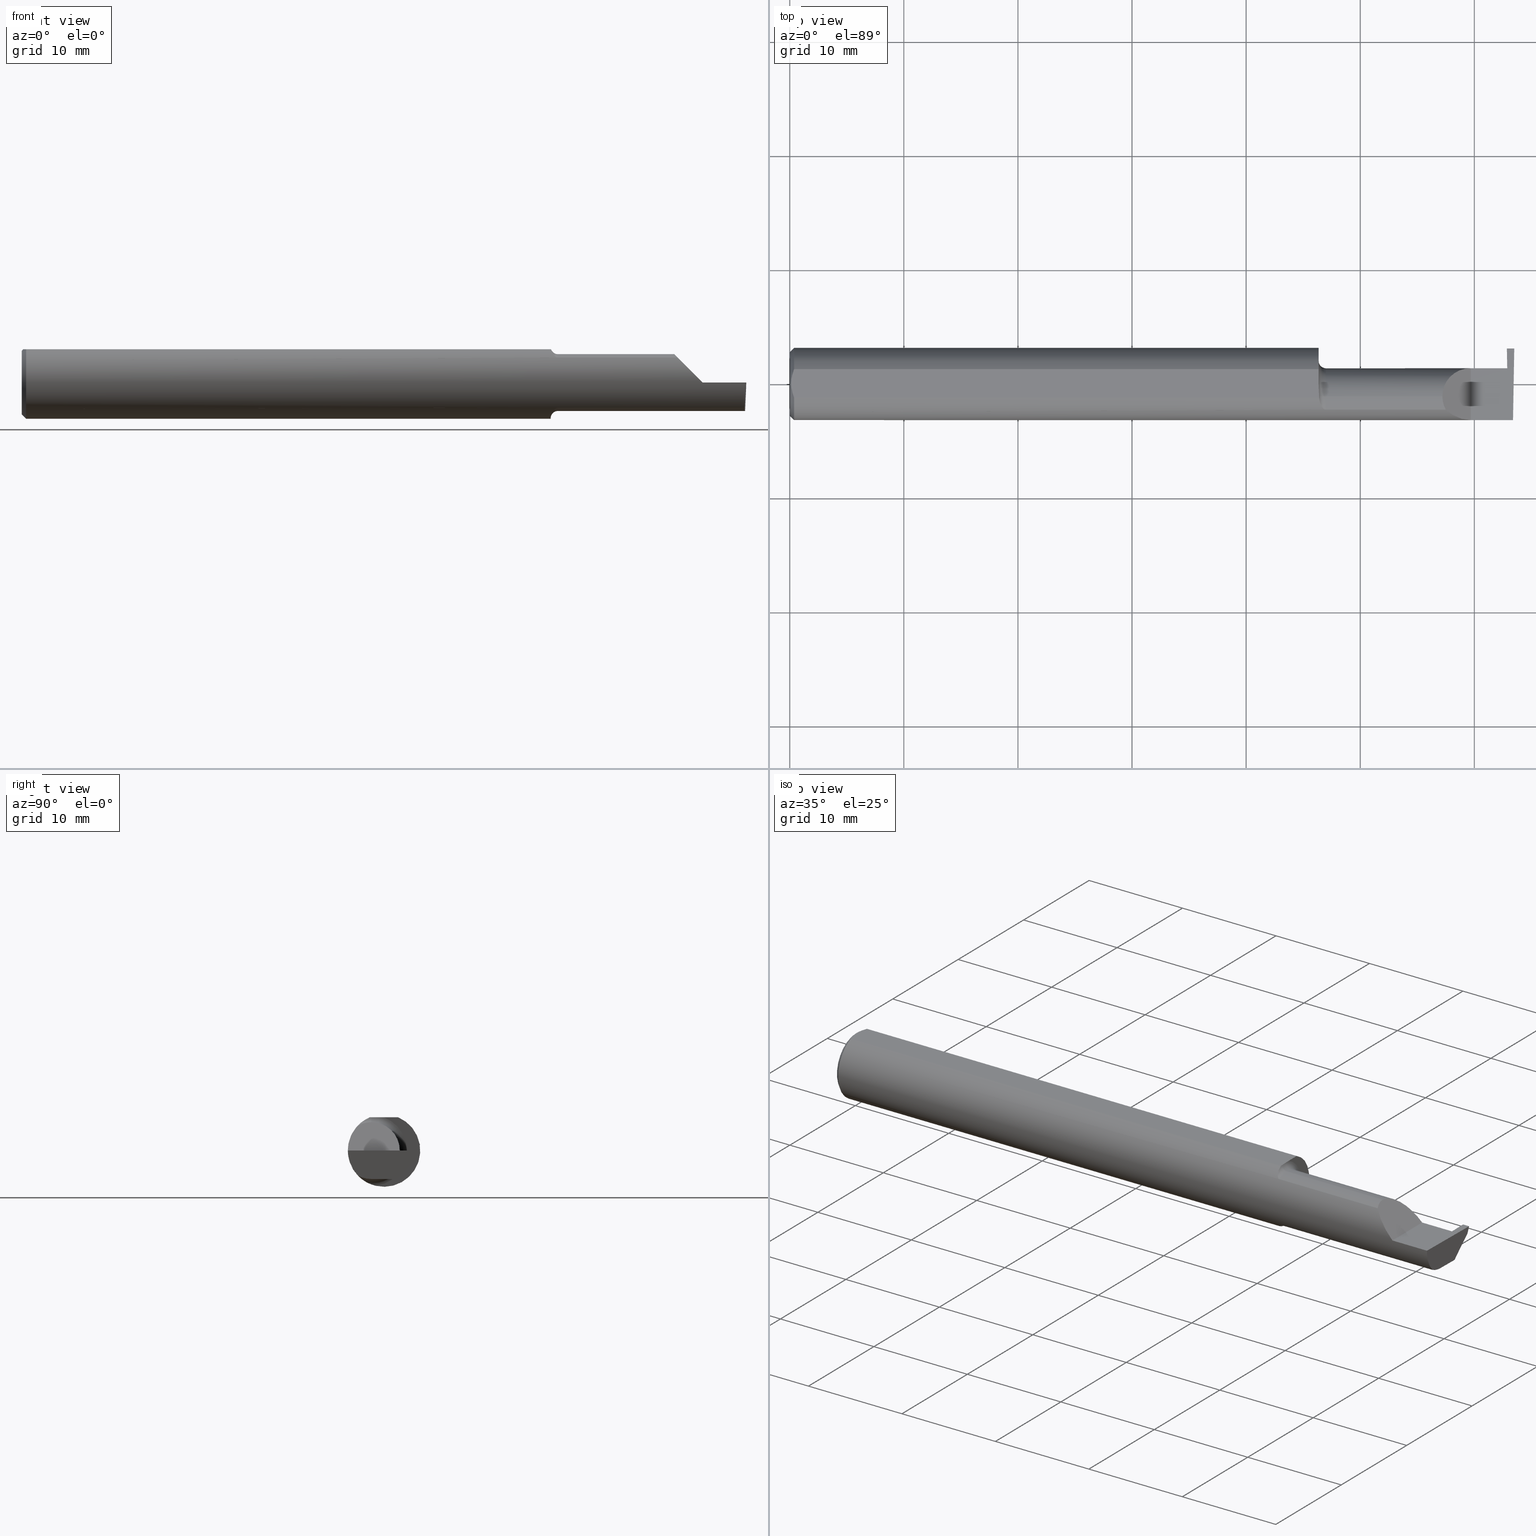
[diagram: canonical four-view strip — front | top / right | iso, engineering-drawing reading convention]
A machine part, canonical four-view strip (front | top / right | iso — engineering-drawing reading convention). The complete STEP part file that produces these views, byte-faithful:
ISO-10303-21;
HEADER;
FILE_DESCRIPTION (( 'STEP AP203' ),
    '1' );
FILE_NAME ('220797-GT025Q-10.STEP',
    '2024-07-08T23:03:44',
    ( '' ),
    ( '' ),
    'SwSTEP 2.0',
    'SolidWorks 2024',
    '' );
FILE_SCHEMA (( 'CONFIG_CONTROL_DESIGN' ));
ENDSEC;

DATA;
#1 = DIRECTION ( 'NONE',  ( -1.000000000000000000, -0.000000000000000000, -0.000000000000000000 ) ) ;
#2 = CIRCLE ( 'NONE', #459, 0.09800000000000000377 ) ;
#3 = AXIS2_PLACEMENT_3D ( 'NONE', #192, #135, #379 ) ;
#4 = CYLINDRICAL_SURFACE ( 'NONE', #387, 0.09800000000000001765 ) ;
#5 = CARTESIAN_POINT ( 'NONE',  ( 1.824999999999999734, -0.04385000000000001397, 0.000000000000000000 ) ) ;
#6 = PLANE ( 'NONE',  #3 ) ;
#7 = CARTESIAN_POINT ( 'NONE',  ( 2.479356049968030273, -2.422821260986651293, -0.09950090062502335575 ) ) ;
#8 = PRODUCT_RELATED_PRODUCT_CATEGORY ( 'detail', '', ( #577 ) ) ;
#9 = EDGE_CURVE ( 'NONE', #768, #146, #781, .T. ) ;
#10 = LINE ( 'NONE', #671, #499 ) ;
#11 = FACE_OUTER_BOUND ( 'NONE', #775, .T. ) ;
#12 = LOCAL_TIME ( 16, 3, 44.00000000000000000, #714 ) ;
#13 = CARTESIAN_POINT ( 'NONE',  ( 1.825756598855983848, -0.04384999999999998621, -0.1168961077196328247 ) ) ;
#14 = AXIS2_PLACEMENT_3D ( 'NONE', #550, #106, #716 ) ;
#15 = B_SPLINE_CURVE_WITH_KNOTS ( 'NONE', 3,
 ( #13, #676, #382, #269 ),
 .UNSPECIFIED., .F., .F.,
 ( 4, 4 ),
 ( 0.001640801893433598479, 0.002088276671954516356 ),
 .UNSPECIFIED. ) ;
#16 = VERTEX_POINT ( 'NONE', #338 ) ;
#17 = DIRECTION ( 'NONE',  ( -0.01744642479411243410, -0.9998477995484630343, 2.816882764651548725E-16 ) ) ;
#18 = ORIENTED_EDGE ( 'NONE', *, *, #453, .T. ) ;
#19 = EDGE_CURVE ( 'NONE', #747, #470, #638, .T. ) ;
#20 = ADVANCED_FACE ( 'NONE', ( #468 ), #780, .F. ) ;
#21 = FACE_OUTER_BOUND ( 'NONE', #649, .T. ) ;
#22 = CARTESIAN_POINT ( 'NONE',  ( 1.824999999999999956, -0.04385000000000001397, 0.000000000000000000 ) ) ;
#23 = EDGE_LOOP ( 'NONE', ( #55, #704, #343, #786, #519, #433 ) ) ;
#24 = LINE ( 'NONE', #520, #551 ) ;
#25 = LINE ( 'NONE', #685, #175 ) ;
#26 = LOCAL_TIME ( 16, 3, 44.00000000000000000, #493 ) ;
#27 = EDGE_LOOP ( 'NONE', ( #743, #397, #571, #556 ) ) ;
#28 = VECTOR ( 'NONE', #219, 39.37007874015748143 ) ;
#29 = AXIS2_PLACEMENT_3D ( 'NONE', #56, #589, #404 ) ;
#30 = CARTESIAN_POINT ( 'NONE',  ( 2.494033449660867152, -0.09015216647662478711, -0.08637192471845772657 ) ) ;
#31 = CARTESIAN_POINT ( 'NONE',  ( 2.287163018370355072, -0.1127002472623170187, 0.06283698162964532208 ) ) ;
#32 = ORIENTED_EDGE ( 'NONE', *, *, #236, .F. ) ;
#33 = DIRECTION ( 'NONE',  ( -1.000000000000000000, -0.000000000000000000, -0.000000000000000000 ) ) ;
#34 = CARTESIAN_POINT ( 'NONE',  ( 1.824999999999999734, -0.1248500000000000165, 0.1148500000000000076 ) ) ;
#35 = ORIENTED_EDGE ( 'NONE', *, *, #670, .T. ) ;
#36 = ORIENTED_EDGE ( 'NONE', *, *, #427, .T. ) ;
#37 = CALENDAR_DATE ( 2024, 8, 7 ) ;
#38 = DIRECTION ( 'NONE',  ( -1.000000000000000000, -0.000000000000000000, -0.000000000000000000 ) ) ;
#39 = VERTEX_POINT ( 'NONE', #557 ) ;
#40 = VECTOR ( 'NONE', #258, 39.37007874015748854 ) ;
#41 = ORIENTED_EDGE ( 'NONE', *, *, #438, .F. ) ;
#42 = SECURITY_CLASSIFICATION_LEVEL ( 'unclassified' ) ;
#43 = CARTESIAN_POINT ( 'NONE',  ( 1.824999999999999734, 0.000000000000000000, 0.000000000000000000 ) ) ;
#44 = DIRECTION ( 'NONE',  ( 0.000000000000000000, 0.000000000000000000, 1.000000000000000000 ) ) ;
#45 = EDGE_CURVE ( 'NONE', #16, #768, #488, .T. ) ;
#46 = ORIENTED_EDGE ( 'NONE', *, *, #771, .T. ) ;
#47 = PERSON_AND_ORGANIZATION_ROLE ( 'creator' ) ;
#48 = DIRECTION ( 'NONE',  ( 0.000000000000000000, 0.000000000000000000, -1.000000000000000000 ) ) ;
#49 = FACE_OUTER_BOUND ( 'NONE', #23, .T. ) ;
#50 =( BOUNDED_CURVE ( )  B_SPLINE_CURVE ( 3, ( #292, #600, #783, #477 ),
 .UNSPECIFIED., .F., .F. ) 
 B_SPLINE_CURVE_WITH_KNOTS ( ( 4, 4 ),
 ( 3.140983202202990654, 4.463962699426421210 ),
 .UNSPECIFIED. ) 
 CURVE ( )  GEOMETRIC_REPRESENTATION_ITEM ( )  RATIONAL_B_SPLINE_CURVE ( ( 1.000000000000000000, 0.8593853101475603662, 0.8593853101475603662, 1.000000000000000000 ) ) 
 REPRESENTATION_ITEM ( '' )  );
#51 = PERSON_AND_ORGANIZATION ( #457, #712 ) ;
#52 = CARTESIAN_POINT ( 'NONE',  ( 1.847502509400849924, -0.09015216647698162666, 0.08637192471808539940 ) ) ;
#53 = CARTESIAN_POINT ( 'NONE',  ( 2.474831655309489342, 0.05414656493488109734, -0.008143655253979704967 ) ) ;
#54 = VECTOR ( 'NONE', #373, 39.37007874015748143 ) ;
#55 = ORIENTED_EDGE ( 'NONE', *, *, #60, .F. ) ;
#56 = CARTESIAN_POINT ( 'NONE',  ( 0.000000000000000000, 0.000000000000000000, 0.000000000000000000 ) ) ;
#57 = VECTOR ( 'NONE', #218, 39.37007874015748143 ) ;
#58 = VECTOR ( 'NONE', #745, 39.37007874015748854 ) ;
#59 = FACE_OUTER_BOUND ( 'NONE', #193, .T. ) ;
#60 = EDGE_CURVE ( 'NONE', #217, #545, #353, .T. ) ;
#61 = CARTESIAN_POINT ( 'NONE',  ( 1.826090261609496501, -0.02916889382056610247, 0.1148499999999999938 ) ) ;
#62 = ADVANCED_FACE ( 'NONE', ( #170 ), #416, .F. ) ;
#63 = EDGE_LOOP ( 'NONE', ( #606, #466, #85, #177 ) ) ;
#64 = CARTESIAN_POINT ( 'NONE',  ( 0.009415874254822407391, -0.03313958207962815206, 0.1148500000000000076 ) ) ;
#65 = DIRECTION ( 'NONE',  ( -0.000000000000000000, 1.000000000000000000, 1.224646799147353207E-16 ) ) ;
#66 = ORIENTED_EDGE ( 'NONE', *, *, #453, .F. ) ;
#67 = DIRECTION ( 'NONE',  ( 0.05230942393459277889, 0.000000000000000000, -0.9986309249005015376 ) ) ;
#68 = CARTESIAN_POINT ( 'NONE',  ( 1.839311064734461043, -0.08485061678078664738, -0.09161469295857048445 ) ) ;
#69 = FACE_OUTER_BOUND ( 'NONE', #422, .T. ) ;
#70 = CONICAL_SURFACE ( 'NONE', #224, 0.1248500000000000026, 0.7853981633974480570 ) ;
#71 = CONICAL_SURFACE ( 'NONE', #733, 0.1248500000000000026, 0.7853981633974480570 ) ;
#72 = CARTESIAN_POINT ( 'NONE',  ( 0.000000000000000000, 0.000000000000000000, 0.000000000000000000 ) ) ;
#73 = ADVANCED_FACE ( 'NONE', ( #174 ), #601, .T. ) ;
#74 =( BOUNDED_CURVE ( )  B_SPLINE_CURVE ( 3, ( #481, #227, #539, #242 ),
 .UNSPECIFIED., .F., .F. ) 
 B_SPLINE_CURVE_WITH_KNOTS ( ( 4, 4 ),
 ( 5.791092865617130769, 6.283185307179586232 ),
 .UNSPECIFIED. ) 
 CURVE ( )  GEOMETRIC_REPRESENTATION_ITEM ( )  RATIONAL_B_SPLINE_CURVE ( ( 1.000000000000000000, 0.9799220177372781615, 0.9799220177372781615, 1.000000000000000000 ) ) 
 REPRESENTATION_ITEM ( '' )  );
#75 = CARTESIAN_POINT ( 'NONE',  ( 2.350000000000000089, 0.05414999999999992042, 1.836970198721028825E-17 ) ) ;
#76 = DIRECTION ( 'NONE',  ( 0.01744642479411244104, 0.9998477995484630343, -2.135106780035405654E-18 ) ) ;
#77 = B_SPLINE_CURVE_WITH_KNOTS ( 'NONE', 3,
 ( #235, #179, #651, #105, #772, #534 ),
 .UNSPECIFIED., .F., .F.,
 ( 4, 2, 4 ),
 ( 0.002396733445051244405, 0.003027584450080036006, 0.003658435455108827606 ),
 .UNSPECIFIED. ) ;
#78 = CARTESIAN_POINT ( 'NONE',  ( 2.499227245409318066, 0.1138861372810480027, -0.02399999999999999356 ) ) ;
#79 = EDGE_CURVE ( 'NONE', #701, #660, #314, .T. ) ;
#80 = PLANE ( 'NONE',  #158 ) ;
#81 = ORIENTED_EDGE ( 'NONE', *, *, #45, .F. ) ;
#82 = CARTESIAN_POINT ( 'NONE',  ( 1.825756598855983848, -0.04384999999999998621, -0.1168961077196328247 ) ) ;
#83 = ADVANCED_FACE ( 'NONE', ( #369 ), #667, .F. ) ;
#84 = VECTOR ( 'NONE', #583, 39.37007874015748854 ) ;
#85 = ORIENTED_EDGE ( 'NONE', *, *, #389, .F. ) ;
#86 = DIRECTION ( 'NONE',  ( -1.000000000000000000, -0.000000000000000000, -0.000000000000000000 ) ) ;
#87 = ORIENTED_EDGE ( 'NONE', *, *, #141, .T. ) ;
#88 = CARTESIAN_POINT ( 'NONE',  ( 0.01499999999999999944, 0.000000000000000000, 0.000000000000000000 ) ) ;
#89 = CARTESIAN_POINT ( 'NONE',  ( 2.317406910344189441, -0.1248500000000000582, 0.03259308965581153572 ) ) ;
#90 = ADVANCED_FACE ( 'NONE', ( #49 ), #276, .F. ) ;
#91 = LINE ( 'NONE', #455, #58 ) ;
#92 = CARTESIAN_POINT ( 'NONE',  ( 0.01499999999999999944, 0.000000000000000000, 0.000000000000000000 ) ) ;
#93 = LOCAL_TIME ( 16, 3, 44.00000000000000000, #300 ) ;
#94 = ORIENTED_EDGE ( 'NONE', *, *, #586, .T. ) ;
#95 = AXIS2_PLACEMENT_3D ( 'NONE', #7, #384, #67 ) ;
#96 = EDGE_CURVE ( 'NONE', #591, #228, #483, .T. ) ;
#97 = PLANE ( 'NONE',  #641 ) ;
#98 = CARTESIAN_POINT ( 'NONE',  ( 1.849999999999999867, -0.04385000000000001397, 0.000000000000000000 ) ) ;
#99 = ORIENTED_EDGE ( 'NONE', *, *, #296, .F. ) ;
#100 = ORIENTED_EDGE ( 'NONE', *, *, #480, .T. ) ;
#101 = DIRECTION ( 'NONE',  ( 0.000000000000000000, 0.000000000000000000, 1.000000000000000000 ) ) ;
#102 = VERTEX_POINT ( 'NONE', #110 ) ;
#103 = ORIENTED_EDGE ( 'NONE', *, *, #586, .F. ) ;
#104 = COORDINATED_UNIVERSAL_TIME_OFFSET ( 8, 0, .BEHIND. ) ;
#105 = CARTESIAN_POINT ( 'NONE',  ( 0.005947935873631229539, 0.01679708999422689641, 0.1148500000000000076 ) ) ;
#106 = DIRECTION ( 'NONE',  ( -1.000000000000000000, -0.000000000000000000, -0.000000000000000000 ) ) ;
#107 = ORIENTED_EDGE ( 'NONE', *, *, #521, .F. ) ;
#108 = APPROVAL_STATUS ( 'not_yet_approved' ) ;
#109 = CARTESIAN_POINT ( 'NONE',  ( 2.474388613855386332, 0.1230871535114424209, 0.002721691421983212737 ) ) ;
#110 = CARTESIAN_POINT ( 'NONE',  ( 0.000000000000000000, 0.000000000000000000, -0.1098500000000000032 ) ) ;
#111 = ORIENTED_EDGE ( 'NONE', *, *, #592, .T. ) ;
#112 = CARTESIAN_POINT ( 'NONE',  ( 1.849999999999999867, -0.04385000000000001397, 0.000000000000000000 ) ) ;
#113 = DIRECTION ( 'NONE',  ( -1.000000000000000000, -0.000000000000000000, -0.000000000000000000 ) ) ;
#114 = ORIENTED_EDGE ( 'NONE', *, *, #45, .T. ) ;
#115 = APPROVAL_STATUS ( 'not_yet_approved' ) ;
#116 = EDGE_CURVE ( 'NONE', #102, #726, #572, .T. ) ;
#117 = LINE ( 'NONE', #109, #595 ) ;
#118 = CARTESIAN_POINT ( 'NONE',  ( 1.826365755776839350, -0.04385000000000001397, 0.1148500000000000076 ) ) ;
#119 = CIRCLE ( 'NONE', #263, 0.1248500000000000026 ) ;
#120 = EDGE_LOOP ( 'NONE', ( #41, #598, #35, #721 ) ) ;
#121 = CC_DESIGN_DATE_AND_TIME_ASSIGNMENT ( #234, #291, ( #675 ) ) ;
#122 = AXIS2_PLACEMENT_3D ( 'NONE', #663, #244, #252 ) ;
#123 = LINE ( 'NONE', #674, #202 ) ;
#124 = CARTESIAN_POINT ( 'NONE',  ( 2.475482208140548313, -2.422866332892217756, -0.02554602750237028319 ) ) ;
#125 = ORIENTED_EDGE ( 'NONE', *, *, #699, .F. ) ;
#126 = DIRECTION ( 'NONE',  ( -0.000000000000000000, 1.000000000000000000, -0.000000000000000000 ) ) ;
#127 = CARTESIAN_POINT ( 'NONE',  ( 2.495688583004118666, -0.1248499869621840785, -5.705736120965713455E-05 ) ) ;
#128 = CARTESIAN_POINT ( 'NONE',  ( 2.500000000000000000, 0.05414999999999998981, -4.017921862786682551E-33 ) ) ;
#129 = CARTESIAN_POINT ( 'NONE',  ( 1.826365755776839350, -0.04385000000000001397, 0.1148500000000000076 ) ) ;
#130 = CC_DESIGN_DATE_AND_TIME_ASSIGNMENT ( #718, #765, ( #301 ) ) ;
#131 = EDGE_CURVE ( 'NONE', #686, #285, #573, .T. ) ;
#132 = APPROVAL_PERSON_ORGANIZATION ( #479, #153, #241 ) ;
#133 = CARTESIAN_POINT ( 'NONE',  ( 2.292592929112563738, 0.05415000000000006614, 0.05740707088743669112 ) ) ;
#134 = AXIS2_PLACEMENT_3D ( 'NONE', #560, #264, #564 ) ;
#135 = DIRECTION ( 'NONE',  ( -1.224646799147352221E-16, 0.000000000000000000, -1.000000000000000000 ) ) ;
#136 = DIRECTION ( 'NONE',  ( 0.000000000000000000, 0.000000000000000000, -1.000000000000000000 ) ) ;
#137 = CARTESIAN_POINT ( 'NONE',  ( 1.833278800716857448, -0.07573621487658335760, -0.09938639293507173234 ) ) ;
#138 = ORIENTED_EDGE ( 'NONE', *, *, #323, .F. ) ;
#139 = ADVANCED_FACE ( 'NONE', ( #491 ), #687, .F. ) ;
#140 = CARTESIAN_POINT ( 'NONE',  ( 0.004999999999999990563, 1.454187663965904829E-17, 0.1148500000000000076 ) ) ;
#141 = EDGE_CURVE ( 'NONE', #726, #102, #472, .T. ) ;
#142 = CARTESIAN_POINT ( 'NONE',  ( 0.01499999999999987454, 0.04895916665957496944, 0.1148500000000000076 ) ) ;
#143 = ORIENTED_EDGE ( 'NONE', *, *, #417, .T. ) ;
#144 = DIRECTION ( 'NONE',  ( 0.000000000000000000, 0.000000000000000000, 1.000000000000000000 ) ) ;
#145 = VECTOR ( 'NONE', #665, 39.37007874015748143 ) ;
#146 = VERTEX_POINT ( 'NONE', #425 ) ;
#147 = LINE ( 'NONE', #221, #678 ) ;
#148 = CARTESIAN_POINT ( 'NONE',  ( 2.474499999999999922, 0.1221499999999999808, -3.306546357697866753E-19 ) ) ;
#149 = CARTESIAN_POINT ( 'NONE',  ( 2.494536841675280225, -0.04385000000000003478, -0.09799999999999998990 ) ) ;
#150 = CARTESIAN_POINT ( 'NONE',  ( 1.849999999999999867, -0.09015216647662475935, -0.08637192471845775432 ) ) ;
#151 =( BOUNDED_CURVE ( )  B_SPLINE_CURVE ( 3, ( #330, #275, #160, #149 ),
 .UNSPECIFIED., .F., .F. ) 
 B_SPLINE_CURVE_WITH_KNOTS ( ( 4, 4 ),
 ( 0.09562308769838386013, 0.5877155292608426951 ),
 .UNSPECIFIED. ) 
 CURVE ( )  GEOMETRIC_REPRESENTATION_ITEM ( )  RATIONAL_B_SPLINE_CURVE ( ( 1.000000000000000000, 0.9799220177372778284, 0.9799220177372778284, 1.000000000000000000 ) ) 
 REPRESENTATION_ITEM ( '' )  );
#152 = EDGE_LOOP ( 'NONE', ( #643, #644, #517, #694, #705, #593, #94 ) ) ;
#153 = APPROVAL ( #108, 'UNSPECIFIED' ) ;
#154 = EDGE_CURVE ( 'NONE', #228, #664, #176, .T. ) ;
#155 = DIRECTION ( 'NONE',  ( 0.9992391710281357531, 0.01740988840156782944, 0.03489949668475364475 ) ) ;
#156 = AXIS2_PLACEMENT_3D ( 'NONE', #5, #259, #729 ) ;
#157 = VERTEX_POINT ( 'NONE', #683 ) ;
#158 = AXIS2_PLACEMENT_3D ( 'NONE', #72, #620, #328 ) ;
#159 = ORIENTED_EDGE ( 'NONE', *, *, #131, .T. ) ;
#160 = CARTESIAN_POINT ( 'NONE',  ( 2.494253479596434175, -0.06008937020638523835, -0.09800000000000001765 ) ) ;
#161 = EDGE_CURVE ( 'NONE', #411, #541, #734, .T. ) ;
#162 = CARTESIAN_POINT ( 'NONE',  ( 1.849999999999999867, -0.09015216647662482874, 0.08637192471845771269 ) ) ;
#163 = B_SPLINE_CURVE_WITH_KNOTS ( 'NONE', 3,
 ( #372, #325, #507, #617, #68, #680, #137, #518, #222, #742, #341, #629 ),
 .UNSPECIFIED., .F., .F.,
 ( 4, 2, 2, 2, 2, 4 ),
 ( 1.963988863453624846E-07, 0.0002052720857047482257, 0.0004103477725231510602, 0.0008204991461599665413, 0.001230650519796782456, 0.001640801893433598479 ),
 .UNSPECIFIED. ) ;
#164 = ORIENTED_EDGE ( 'NONE', *, *, #79, .F. ) ;
#165 = ORIENTED_EDGE ( 'NONE', *, *, #116, .T. ) ;
#166 = PERSON_AND_ORGANIZATION ( #457, #712 ) ;
#167 = ADVANCED_FACE ( 'NONE', ( #374 ), #203, .T. ) ;
#168 = ADVANCED_FACE ( 'NONE', ( #262 ), #70, .T. ) ;
#169 = DIRECTION ( 'NONE',  ( 0.02617296143184117893, -0.0004568507411563391195, 0.9996573249755575929 ) ) ;
#170 = FACE_OUTER_BOUND ( 'NONE', #407, .T. ) ;
#171 = EDGE_LOOP ( 'NONE', ( #394, #317, #535, #758, #111, #402, #391, #210 ) ) ;
#172 = DIRECTION ( 'NONE',  ( 1.000000000000000000, 0.000000000000000000, 0.000000000000000000 ) ) ;
#173 = B_SPLINE_CURVE_WITH_KNOTS ( 'NONE', 3,
 ( #719, #596, #188, #543, #662, #657, #486, #363, #52, #494 ),
 .UNSPECIFIED., .F., .F.,
 ( 4, 2, 2, 2, 4 ),
 ( 5.065792501958445587E-07, 0.0007388407002080924022, 0.001108007760687040964, 0.001292591290926509281, 0.001477174821165978032 ),
 .UNSPECIFIED. ) ;
#174 = FACE_OUTER_BOUND ( 'NONE', #171, .T. ) ;
#175 = VECTOR ( 'NONE', #393, 39.37007874015748143 ) ;
#176 = B_SPLINE_CURVE_WITH_KNOTS ( 'NONE', 3,
 ( #118, #364, #61, #311, #554, #614 ),
 .UNSPECIFIED., .F., .F.,
 ( 4, 2, 4 ),
 ( 0.009485158816280163732, 0.01004274199597738476, 0.01060032517567460753 ),
 .UNSPECIFIED. ) ;
#177 = ORIENTED_EDGE ( 'NONE', *, *, #521, .T. ) ;
#178 = CALENDAR_DATE ( 2024, 8, 7 ) ;
#179 = CARTESIAN_POINT ( 'NONE',  ( 0.01193974418109659125, 0.04115525648180412555, 0.1148500000000000215 ) ) ;
#180 = DIRECTION ( 'NONE',  ( -1.000000000000000000, -0.000000000000000000, -0.000000000000000000 ) ) ;
#181 = EDGE_CURVE ( 'NONE', #747, #189, #447, .T. ) ;
#182 = VERTEX_POINT ( 'NONE', #142 ) ;
#183 = CALENDAR_DATE ( 2024, 8, 7 ) ;
#184 = CARTESIAN_POINT ( 'NONE',  ( 1.824999999999999734, 0.1541499999999999537, 0.000000000000000000 ) ) ;
#185 = CARTESIAN_POINT ( 'NONE',  ( 1.826362484150211518, -0.04555293709217374948, 0.1148500000000000076 ) ) ;
#186 = CC_DESIGN_PERSON_AND_ORGANIZATION_ASSIGNMENT ( #761, #476, ( #485 ) ) ;
#187 = ORIENTED_EDGE ( 'NONE', *, *, #771, .F. ) ;
#188 = CARTESIAN_POINT ( 'NONE',  ( 1.829335346929731987, -0.06618116991733533072, 0.1062694618618283127 ) ) ;
#189 = VERTEX_POINT ( 'NONE', #505 ) ;
#190 = AXIS2_PLACEMENT_3D ( 'NONE', #605, #656, #611 ) ;
#191 = DIRECTION ( 'NONE',  ( 1.000000000000000000, 0.000000000000000000, 0.000000000000000000 ) ) ;
#192 = CARTESIAN_POINT ( 'NONE',  ( 2.500000000000000000, -0.2000000000000000111, 0.000000000000000000 ) ) ;
#193 = EDGE_LOOP ( 'NONE', ( #100, #709, #581 ) ) ;
#194 = CARTESIAN_POINT ( 'NONE',  ( 0.01499999999999999944, 0.000000000000000000, -0.1248500000000000026 ) ) ;
#195 = ADVANCED_FACE ( 'NONE', ( #435 ), #4, .T. ) ;
#196 = CARTESIAN_POINT ( 'NONE',  ( 1.824999999999999956, -0.04385000000000001397, 0.000000000000000000 ) ) ;
#197 = CARTESIAN_POINT ( 'NONE',  ( 0.000000000000000000, 1.437123018799419134E-17, 0.1098500000000000032 ) ) ;
#198 = DIRECTION ( 'NONE',  ( 1.000000000000000000, 0.000000000000000000, 0.000000000000000000 ) ) ;
#199 = CC_DESIGN_SECURITY_CLASSIFICATION ( #675, ( #485 ) ) ;
#200 = CARTESIAN_POINT ( 'NONE',  ( 0.005932194444709715242, -0.01671525318617308672, 0.1148499999999999938 ) ) ;
#201 = AXIS2_PLACEMENT_3D ( 'NONE', #98, #38, #516 ) ;
#202 = VECTOR ( 'NONE', #1, 39.37007874015748143 ) ;
#203 = PLANE ( 'NONE',  #239 ) ;
#204 = EDGE_CURVE ( 'NONE', #448, #411, #502, .T. ) ;
#205 = DIRECTION ( 'NONE',  ( -1.000000000000000000, -0.000000000000000000, -0.000000000000000000 ) ) ;
#206 = CARTESIAN_POINT ( 'NONE',  ( 1.824999999999999734, 0.04895916665957496944, 0.1148500000000000076 ) ) ;
#207 = EDGE_LOOP ( 'NONE', ( #452, #760, #358, #717, #602 ) ) ;
#208 = LINE ( 'NONE', #515, #399 ) ;
#209 = DIRECTION ( 'NONE',  ( 0.000000000000000000, -0.9455185755993165131, 0.3255681544571576991 ) ) ;
#210 = ORIENTED_EDGE ( 'NONE', *, *, #131, .F. ) ;
#211 = CARTESIAN_POINT ( 'NONE',  ( 2.252000000000000668, -0.04385000000000001397, 0.09800000000000001765 ) ) ;
#212 = VECTOR ( 'NONE', #700, 39.37007874015748143 ) ;
#213 = DIRECTION ( 'NONE',  ( -1.000000000000000000, -0.000000000000000000, -0.000000000000000000 ) ) ;
#214 = PRODUCT_DEFINITION_SHAPE ( 'NONE', 'NONE',  #301 ) ;
#215 = ORIENTED_EDGE ( 'NONE', *, *, #403, .T. ) ;
#216 = CARTESIAN_POINT ( 'NONE',  ( 2.399999999999999911, 0.1221499999999999808, -3.306546357697866753E-19 ) ) ;
#217 = VERTEX_POINT ( 'NONE', #82 ) ;
#218 = DIRECTION ( 'NONE',  ( 0.01742050049977532031, -0.9998482515673753346, -2.130797594924657633E-18 ) ) ;
#219 = DIRECTION ( 'NONE',  ( -0.03489418134011375294, -0.0006090802009084599154, 0.9993908270190957621 ) ) ;
#220 = EDGE_LOOP ( 'NONE', ( #250, #370, #692, #18 ) ) ;
#221 = CARTESIAN_POINT ( 'NONE',  ( 1.824999999999999956, -0.04385000000000000703, -0.09800000000000001765 ) ) ;
#222 = CARTESIAN_POINT ( 'NONE',  ( 1.828850144156349167, -0.06295012366509156188, -0.1079450122012245161 ) ) ;
#223 = ORIENTED_EDGE ( 'NONE', *, *, #736, .F. ) ;
#224 = AXIS2_PLACEMENT_3D ( 'NONE', #626, #561, #728 ) ;
#225 = EDGE_CURVE ( 'NONE', #285, #346, #569, .T. ) ;
#226 = PERSON_AND_ORGANIZATION ( #457, #712 ) ;
#227 = CARTESIAN_POINT ( 'NONE',  ( 2.255955442396118116, -0.07583965973232791036, 0.09404455760388216734 ) ) ;
#228 = VERTEX_POINT ( 'NONE', #129 ) ;
#229 = VERTEX_POINT ( 'NONE', #206 ) ;
#230 = APPROVAL_ROLE ( '' ) ;
#231 = DIRECTION ( 'NONE',  ( -0.7071067811865459074, 0.000000000000000000, 0.7071067811865492381 ) ) ;
#232 = CARTESIAN_POINT ( 'NONE',  ( 1.849999999999999867, -0.04385000000000000009, -0.1230000000000000121 ) ) ;
#233 = ORIENTED_EDGE ( 'NONE', *, *, #443, .F. ) ;
#234 = DATE_AND_TIME ( #350, #339 ) ;
#235 = CARTESIAN_POINT ( 'NONE',  ( 0.01499999999999987454, 0.04895916665957496944, 0.1148500000000000076 ) ) ;
#236 = EDGE_CURVE ( 'NONE', #612, #591, #567, .T. ) ;
#237 = CC_DESIGN_APPROVAL ( #153, ( #485 ) ) ;
#238 = DIRECTION ( 'NONE',  ( -1.000000000000000000, -0.000000000000000000, -0.000000000000000000 ) ) ;
#239 = AXIS2_PLACEMENT_3D ( 'NONE', #730, #318, #511 ) ;
#240 = VECTOR ( 'NONE', #126, 39.37007874015748143 ) ;
#241 = APPROVAL_ROLE ( '' ) ;
#242 = CARTESIAN_POINT ( 'NONE',  ( 2.252000000000000668, -0.04385000000000001397, 0.09800000000000001765 ) ) ;
#243 = APPROVAL ( #538, 'UNSPECIFIED' ) ;
#244 = DIRECTION ( 'NONE',  ( -0.9995051766793263681, 0.01744044634006990460, 0.02617694830739123249 ) ) ;
#245 = ADVANCED_FACE ( 'NONE', ( #437 ), #80, .F. ) ;
#246 = ORIENTED_EDGE ( 'NONE', *, *, #376, .F. ) ;
#247 = PERSON_AND_ORGANIZATION_ROLE ( 'design_owner' ) ;
#248 = CARTESIAN_POINT ( 'NONE',  ( 0.004999999999999990563, 1.454187663965904829E-17, 0.1148500000000000076 ) ) ;
#249 = CARTESIAN_POINT ( 'NONE',  ( 2.474499999999999922, 0.05414999123725582758, -4.144270477499261866E-05 ) ) ;
#250 = ORIENTED_EDGE ( 'NONE', *, *, #443, .T. ) ;
#251 = LINE ( 'NONE', #501, #737 ) ;
#252 = DIRECTION ( 'NONE',  ( 0.02618093032612054880, 0.000000000000000000, 0.9996572206948033390 ) ) ;
#253 = ORIENTED_EDGE ( 'NONE', *, *, #323, .T. ) ;
#254 = EDGE_CURVE ( 'NONE', #217, #512, #15, .T. ) ;
#255 = EDGE_CURVE ( 'NONE', #39, #448, #322, .T. ) ;
#256 = AXIS2_PLACEMENT_3D ( 'NONE', #124, #720, #784 ) ;
#257 = DIRECTION ( 'NONE',  ( 0.000000000000000000, 0.000000000000000000, -1.000000000000000000 ) ) ;
#258 = DIRECTION ( 'NONE',  ( 0.04089968566329187094, 0.0006089413954177150604, -0.9991630722274622567 ) ) ;
#259 = DIRECTION ( 'NONE',  ( -1.000000000000000000, -0.000000000000000000, -0.000000000000000000 ) ) ;
#260 = DIRECTION ( 'NONE',  ( -1.000000000000000000, -0.000000000000000000, -0.000000000000000000 ) ) ;
#261 = CARTESIAN_POINT ( 'NONE',  ( 2.252000000000000668, -0.04385000000000001397, 0.09800000000000001765 ) ) ;
#262 = FACE_OUTER_BOUND ( 'NONE', #615, .T. ) ;
#263 = AXIS2_PLACEMENT_3D ( 'NONE', #43, #713, #766 ) ;
#264 = DIRECTION ( 'NONE',  ( -1.000000000000000000, -0.000000000000000000, -0.000000000000000000 ) ) ;
#265 = CIRCLE ( 'NONE', #201, 0.09800000000000001765 ) ;
#266 = CARTESIAN_POINT ( 'NONE',  ( 2.496652745773395576, 0.07741163850316090667, -0.09800000000000001765 ) ) ;
#267 = ORIENTED_EDGE ( 'NONE', *, *, #141, .F. ) ;
#268 = DIRECTION ( 'NONE',  ( -1.291669664973093142E-16, -0.9999998142845093474, -0.0006094513490878760136 ) ) ;
#269 = CARTESIAN_POINT ( 'NONE',  ( 1.824999999999999734, -0.02715330672748003313, -0.1218614805168695830 ) ) ;
#270 = ORIENTED_EDGE ( 'NONE', *, *, #514, .T. ) ;
#271 = DIRECTION ( 'NONE',  ( 0.000000000000000000, 0.000000000000000000, 1.000000000000000000 ) ) ;
#272 = ORIENTED_EDGE ( 'NONE', *, *, #181, .F. ) ;
#273 = CC_DESIGN_PERSON_AND_ORGANIZATION_ASSIGNMENT ( #295, #603, ( #485 ) ) ;
#274 = LOCAL_TIME ( 16, 3, 44.00000000000000000, #702 ) ;
#275 = CARTESIAN_POINT ( 'NONE',  ( 2.494082244196984099, -0.07583965973232809077, -0.09404455760388211183 ) ) ;
#276 = TOROIDAL_SURFACE ( 'NONE', #365, 0.1230000000000000121, 0.02500000000000007078 ) ;
#277 = FACE_OUTER_BOUND ( 'NONE', #220, .T. ) ;
#278 = ORIENTED_EDGE ( 'NONE', *, *, #417, .F. ) ;
#279 = LINE ( 'NONE', #525, #57 ) ;
#280 = CARTESIAN_POINT ( 'NONE',  ( 2.480918903665495279, 0.05424136207626865935, -0.1499086997478103755 ) ) ;
#281 = ORIENTED_EDGE ( 'NONE', *, *, #514, .F. ) ;
#282 = DIRECTION ( 'NONE',  ( -1.000000000000000000, -0.000000000000000000, -0.000000000000000000 ) ) ;
#283 = ORIENTED_EDGE ( 'NONE', *, *, #315, .T. ) ;
#284 = ADVANCED_FACE ( 'NONE', ( #725 ), #6, .F. ) ;
#285 = VERTEX_POINT ( 'NONE', #622 ) ;
#286 = DATE_AND_TIME ( #37, #12 ) ;
#287 = CARTESIAN_POINT ( 'NONE',  ( 2.474499999999999922, -0.04385000000000001397, 0.000000000000000000 ) ) ;
#288 = EDGE_LOOP ( 'NONE', ( #348, #333, #270, #114, #299, #107, #383, #32, #138, #764, #552, #575, #537, #458 ) ) ;
#289 = VECTOR ( 'NONE', #198, 39.37007874015748143 ) ;
#290 = VERTEX_POINT ( 'NONE', #127 ) ;
#291 = DATE_TIME_ROLE ( 'classification_date' ) ;
#292 = CARTESIAN_POINT ( 'NONE',  ( 2.479353376795600639, -0.04385000000000004172, -0.09800000000000000377 ) ) ;
#293 = DIRECTION ( 'NONE',  ( -1.000000000000000000, -0.000000000000000000, -0.000000000000000000 ) ) ;
#294 = ORIENTED_EDGE ( 'NONE', *, *, #504, .F. ) ;
#295 = PERSON_AND_ORGANIZATION ( #457, #712 ) ;
#296 = EDGE_CURVE ( 'NONE', #16, #701, #10, .T. ) ;
#297 = LINE ( 'NONE', #409, #774 ) ;
#298 = CARTESIAN_POINT ( 'NONE',  ( 1.826326891871132618, -0.04895916665958127689, 0.1148500000000000076 ) ) ;
#299 = ORIENTED_EDGE ( 'NONE', *, *, #9, .T. ) ;
#300 = COORDINATED_UNIVERSAL_TIME_OFFSET ( 8, 0, .BEHIND. ) ;
#301 = PRODUCT_DEFINITION ( 'UNKNOWN', '', #485, #326 ) ;
#302 = EDGE_CURVE ( 'NONE', #345, #217, #163, .T. ) ;
#303 = DIRECTION ( 'NONE',  ( -1.000000000000000000, -0.000000000000000000, -0.000000000000000000 ) ) ;
#304 = ADVANCED_BREP_SHAPE_REPRESENTATION ( '220797-GT025Q-10', ( #465, #29 ), #489 ) ;
#305 = CIRCLE ( 'NONE', #156, 0.1230000000000000121 ) ;
#306 = DIRECTION ( 'NONE',  ( 0.000000000000000000, 0.000000000000000000, 1.000000000000000000 ) ) ;
#307 = AXIS2_PLACEMENT_3D ( 'NONE', #112, #303, #779 ) ;
#308 = ORIENTED_EDGE ( 'NONE', *, *, #699, .T. ) ;
#309 =( NAMED_UNIT ( * ) PLANE_ANGLE_UNIT ( ) SI_UNIT ( $, .RADIAN. ) );
#310 = APPLICATION_CONTEXT ( 'configuration controlled 3d designs of mechanical parts and assemblies' ) ;
#311 = CARTESIAN_POINT ( 'NONE',  ( 1.825400391910593445, -0.01449986171080068845, 0.1148500000000000076 ) ) ;
#312 = ORIENTED_EDGE ( 'NONE', *, *, #19, .T. ) ;
#313 = CARTESIAN_POINT ( 'NONE',  ( 0.01195732443765547617, -0.04120008761723503027, 0.1148500000000000076 ) ) ;
#314 = LINE ( 'NONE', #421, #509 ) ;
#315 = EDGE_CURVE ( 'NONE', #346, #747, #580, .T. ) ;
#316 = EDGE_CURVE ( 'NONE', #664, #229, #337, .T. ) ;
#317 = ORIENTED_EDGE ( 'NONE', *, *, #736, .T. ) ;
#318 = DIRECTION ( 'NONE',  ( 0.000000000000000000, -0.000000000000000000, 1.000000000000000000 ) ) ;
#319 = CIRCLE ( 'NONE', #331, 0.1248500000000000026 ) ;
#320 = DIMENSIONAL_EXPONENTS ( 1.000000000000000000, 0.000000000000000000, 0.000000000000000000, 0.000000000000000000, 0.000000000000000000, 0.000000000000000000, 0.000000000000000000 ) ;
#321 = DIRECTION ( 'NONE',  ( 0.000000000000000000, -0.7071067811865462405, 0.7071067811865487940 ) ) ;
#322 = LINE ( 'NONE', #440, #415 ) ;
#323 = EDGE_CURVE ( 'NONE', #740, #612, #319, .T. ) ;
#324 = CARTESIAN_POINT ( 'NONE',  ( 2.399999999999999911, 0.1138861372810479888, -0.02400000000000000050 ) ) ;
#325 = CARTESIAN_POINT ( 'NONE',  ( 1.847259638933030468, -0.09015216647662495364, -0.08637192471845754616 ) ) ;
#326 = DESIGN_CONTEXT ( 'detailed design', #310, 'design' ) ;
#327 = CARTESIAN_POINT ( 'NONE',  ( 2.252000000000000668, 0.01355707088743671532, 0.09800000000000000377 ) ) ;
#328 = DIRECTION ( 'NONE',  ( 0.000000000000000000, 0.000000000000000000, -1.000000000000000000 ) ) ;
#329 = ORIENTED_EDGE ( 'NONE', *, *, #225, .T. ) ;
#330 = CARTESIAN_POINT ( 'NONE',  ( 2.494033449660867152, -0.09015216647662478711, -0.08637192471845772657 ) ) ;
#331 = AXIS2_PLACEMENT_3D ( 'NONE', #92, #86, #101 ) ;
#332 = CARTESIAN_POINT ( 'NONE',  ( 0.000000000000000000, -0.04895916665957456698, 0.1148500000000000076 ) ) ;
#333 = ORIENTED_EDGE ( 'NONE', *, *, #376, .T. ) ;
#334 = PLANE ( 'NONE',  #696 ) ;
#335 = VERTEX_POINT ( 'NONE', #467 ) ;
#336 = EDGE_CURVE ( 'NONE', #406, #545, #265, .T. ) ;
#337 = LINE ( 'NONE', #34, #212 ) ;
#338 = CARTESIAN_POINT ( 'NONE',  ( 2.495690077103728921, -0.1248499999950964945, 8.800986592364463999E-18 ) ) ;
#339 = LOCAL_TIME ( 16, 3, 44.00000000000000000, #104 ) ;
#340 = VECTOR ( 'NONE', #646, 39.37007874015748143 ) ;
#341 = CARTESIAN_POINT ( 'NONE',  ( 1.826227715916084904, -0.04883822427082834539, -0.1150249279297937688 ) ) ;
#342 = TOROIDAL_SURFACE ( 'NONE', #134, 0.1230000000000000121, 0.02500000000000007078 ) ;
#343 = ORIENTED_EDGE ( 'NONE', *, *, #722, .F. ) ;
#344 = DIRECTION ( 'NONE',  ( 0.03490478697967554916, 0.000000000000000000, -0.9993906422645267851 ) ) ;
#345 = VERTEX_POINT ( 'NONE', #150 ) ;
#346 = VERTEX_POINT ( 'NONE', #688 ) ;
#347 = FACE_OUTER_BOUND ( 'NONE', #63, .T. ) ;
#348 = ORIENTED_EDGE ( 'NONE', *, *, #631, .F. ) ;
#349 = VERTEX_POINT ( 'NONE', #148 ) ;
#350 = CALENDAR_DATE ( 2024, 8, 7 ) ;
#351 = DIRECTION ( 'NONE',  ( 1.000000000000000000, 0.000000000000000000, 0.000000000000000000 ) ) ;
#352 = CARTESIAN_POINT ( 'NONE',  ( 0.000000000000000000, 0.000000000000000000, 0.000000000000000000 ) ) ;
#353 = CIRCLE ( 'NONE', #639, 0.02500000000000007425 ) ;
#354 = ORIENTED_EDGE ( 'NONE', *, *, #449, .T. ) ;
#355 = FACE_OUTER_BOUND ( 'NONE', #120, .T. ) ;
#356 = APPROVAL ( #115, 'UNSPECIFIED' ) ;
#357 = ADVANCED_FACE ( 'NONE', ( #277 ), #334, .F. ) ;
#358 = ORIENTED_EDGE ( 'NONE', *, *, #204, .F. ) ;
#359 = APPLICATION_PROTOCOL_DEFINITION ( 'international standard', 'config_control_design', 1994, #666 ) ;
#360 = CARTESIAN_POINT ( 'NONE',  ( 1.824999999999999734, -0.02715330672748003313, -0.1218614805168695830 ) ) ;
#361 = CARTESIAN_POINT ( 'NONE',  ( 2.475482208140546536, 0.05115612325138245431, -0.02403823089877875005 ) ) ;
#362 = ORIENTED_EDGE ( 'NONE', *, *, #548, .F. ) ;
#363 = CARTESIAN_POINT ( 'NONE',  ( 1.845195245915188798, -0.08928014009842923093, 0.08728826463235835054 ) ) ;
#364 = CARTESIAN_POINT ( 'NONE',  ( 1.826365755776839572, -0.03650543323727817313, 0.1148500000000000215 ) ) ;
#365 = AXIS2_PLACEMENT_3D ( 'NONE', #495, #540, #597 ) ;
#366 = VERTEX_POINT ( 'NONE', #162 ) ;
#367 = CARTESIAN_POINT ( 'NONE',  ( 2.399999999999999911, 0.1221499999999999808, -3.306546357697866753E-19 ) ) ;
#368 = EDGE_CURVE ( 'NONE', #448, #747, #25, .T. ) ;
#369 = FACE_OUTER_BOUND ( 'NONE', #684, .T. ) ;
#370 = ORIENTED_EDGE ( 'NONE', *, *, #79, .T. ) ;
#371 = FACE_OUTER_BOUND ( 'NONE', #207, .T. ) ;
#372 = CARTESIAN_POINT ( 'NONE',  ( 1.849999999999999867, -0.09015216647662475935, -0.08637192471845775432 ) ) ;
#373 = DIRECTION ( 'NONE',  ( -1.000000000000000000, 1.290923542073696100E-16, 1.224646799147352221E-16 ) ) ;
#374 = FACE_OUTER_BOUND ( 'NONE', #152, .T. ) ;
#375 = CC_DESIGN_APPROVAL ( #356, ( #301 ) ) ;
#376 = EDGE_CURVE ( 'NONE', #335, #290, #513, .T. ) ;
#377 = VECTOR ( 'NONE', #205, 39.37007874015748143 ) ;
#378 = CARTESIAN_POINT ( 'NONE',  ( 0.004999999999999964542, -0.008410771716546819321, 0.1148500000000000215 ) ) ;
#379 = DIRECTION ( 'NONE',  ( -1.000000000000000000, 0.000000000000000000, 1.224646799147352221E-16 ) ) ;
#380 = ADVANCED_FACE ( 'NONE', ( #529 ), #693, .F. ) ;
#381 = DIRECTION ( 'NONE',  ( 0.7071067811865476838, 0.000000000000000000, -0.7071067811865473507 ) ) ;
#382 = CARTESIAN_POINT ( 'NONE',  ( 1.824999999999999734, -0.03284222813693379872, -0.1205938689030582739 ) ) ;
#383 = ORIENTED_EDGE ( 'NONE', *, *, #526, .F. ) ;
#384 = DIRECTION ( 'NONE',  ( 0.9986309243930283630, -3.188005489064430278E-05, 0.05230942390801075065 ) ) ;
#385 = DIRECTION ( 'NONE',  ( 0.000000000000000000, 0.000000000000000000, 1.000000000000000000 ) ) ;
#386 = ORIENTED_EDGE ( 'NONE', *, *, #741, .F. ) ;
#387 = AXIS2_PLACEMENT_3D ( 'NONE', #196, #260, #385 ) ;
#388 = DIRECTION ( 'NONE',  ( 0.000000000000000000, 0.000000000000000000, 1.000000000000000000 ) ) ;
#389 = EDGE_CURVE ( 'NONE', #366, #406, #759, .T. ) ;
#390 = ADVANCED_FACE ( 'NONE', ( #347 ), #522, .T. ) ;
#391 = ORIENTED_EDGE ( 'NONE', *, *, #454, .T. ) ;
#392 =( LENGTH_UNIT ( ) NAMED_UNIT ( * ) SI_UNIT ( $, .METRE. ) );
#393 = DIRECTION ( 'NONE',  ( -0.03699114979479239257, 0.7066228325057374304, 0.7066228325057348769 ) ) ;
#394 = ORIENTED_EDGE ( 'NONE', *, *, #449, .F. ) ;
#395 = CARTESIAN_POINT ( 'NONE',  ( 2.350000000000000089, -0.1248500000000000026, 1.836970198721028825E-17 ) ) ;
#396 = LINE ( 'NONE', #637, #84 ) ;
#397 = ORIENTED_EDGE ( 'NONE', *, *, #96, .F. ) ;
#398 = ADVANCED_FACE ( 'NONE', ( #405 ), #752, .T. ) ;
#399 = VECTOR ( 'NONE', #636, 39.37007874015748143 ) ;
#400 = VECTOR ( 'NONE', #381, 39.37007874015748143 ) ;
#401 = ORIENTED_EDGE ( 'NONE', *, *, #225, .F. ) ;
#402 = ORIENTED_EDGE ( 'NONE', *, *, #618, .T. ) ;
#403 = EDGE_CURVE ( 'NONE', #182, #740, #431, .T. ) ;
#404 = DIRECTION ( 'NONE',  ( 1.000000000000000000, 0.000000000000000000, 0.000000000000000000 ) ) ;
#405 = FACE_OUTER_BOUND ( 'NONE', #288, .T. ) ;
#406 = VERTEX_POINT ( 'NONE', #464 ) ;
#407 = EDGE_LOOP ( 'NONE', ( #484, #418, #763, #164, #99, #281, #246 ) ) ;
#408 = PERSON_AND_ORGANIZATION_ROLE ( 'classification_officer' ) ;
#409 = CARTESIAN_POINT ( 'NONE',  ( 2.162250000000000227, -0.09015216647662478711, 0.08637192471845772657 ) ) ;
#410 = CARTESIAN_POINT ( 'NONE',  ( 1.826365755776839350, -0.04470142088177659484, 0.1148500000000000076 ) ) ;
#411 = VERTEX_POINT ( 'NONE', #691 ) ;
#412 = PERSON_AND_ORGANIZATION ( #457, #712 ) ;
#413 = DIRECTION ( 'NONE',  ( -0.7071067811865492381, 0.000000000000000000, -0.7071067811865459074 ) ) ;
#414 = CC_DESIGN_PERSON_AND_ORGANIZATION_ASSIGNMENT ( #594, #47, ( #301 ) ) ;
#415 = VECTOR ( 'NONE', #565, 39.37007874015748143 ) ;
#416 = PLANE ( 'NONE',  #122 ) ;
#417 = EDGE_CURVE ( 'NONE', #686, #346, #396, .T. ) ;
#418 = ORIENTED_EDGE ( 'NONE', *, *, #161, .F. ) ;
#419 = APPROVAL_DATE_TIME ( #661, #356 ) ;
#420 = DIRECTION ( 'NONE',  ( -1.000000000000000000, -0.000000000000000000, -0.000000000000000000 ) ) ;
#421 = CARTESIAN_POINT ( 'NONE',  ( 2.499907402661638134, 0.1211597610527450908, -0.002875862722115925512 ) ) ;
#422 = EDGE_LOOP ( 'NONE', ( #267, #46, #294, #215, #697 ) ) ;
#423 =( CONVERSION_BASED_UNIT ( 'INCH', #524 ) LENGTH_UNIT ( ) NAMED_UNIT ( #320 ) );
#424 = CARTESIAN_POINT ( 'NONE',  ( 2.350000000000000089, -0.2000000000000000111, 1.836970198721028825E-17 ) ) ;
#425 = CARTESIAN_POINT ( 'NONE',  ( 2.263628075281542973, -0.09015216647662444016, 0.08637192471845807351 ) ) ;
#426 = EDGE_LOOP ( 'NONE', ( #66, #272, #312, #530 ) ) ;
#427 = EDGE_CURVE ( 'NONE', #349, #470, #279, .T. ) ;
#428 = CARTESIAN_POINT ( 'NONE',  ( 1.849999999999999867, -0.04385000000000000009, -0.09800000000000003153 ) ) ;
#429 = ADVANCED_FACE ( 'NONE', ( #355 ), #613, .F. ) ;
#430 = DIRECTION ( 'NONE',  ( 0.000000000000000000, 0.000000000000000000, 1.000000000000000000 ) ) ;
#431 = CIRCLE ( 'NONE', #610, 0.1248500000000000026 ) ;
#432 = B_SPLINE_CURVE_WITH_KNOTS ( 'NONE', 3,
 ( #140, #378, #200, #64, #313, #446 ),
 .UNSPECIFIED., .F., .F.,
 ( 4, 2, 4 ),
 ( 0.003658435455108827606, 0.004289327297787134258, 0.004920219140465441343 ),
 .UNSPECIFIED. ) ;
#433 = ORIENTED_EDGE ( 'NONE', *, *, #336, .T. ) ;
#434 = LINE ( 'NONE', #682, #240 ) ;
#435 = FACE_OUTER_BOUND ( 'NONE', #627, .T. ) ;
#436 = CARTESIAN_POINT ( 'NONE',  ( 2.475482208140546536, 0.05115612325138245431, -0.02403823089877875005 ) ) ;
#437 = FACE_OUTER_BOUND ( 'NONE', #625, .T. ) ;
#438 = EDGE_CURVE ( 'NONE', #146, #789, #74, .T. ) ;
#439 = PLANE ( 'NONE',  #442 ) ;
#440 = CARTESIAN_POINT ( 'NONE',  ( 2.479357246079640476, 0.07735389098887382464, -0.09800000000000001765 ) ) ;
#441 = UNCERTAINTY_MEASURE_WITH_UNIT (LENGTH_MEASURE( 1.000000000000000082E-05 ), #423, 'distance_accuracy_value', 'NONE');
#442 = AXIS2_PLACEMENT_3D ( 'NONE', #324, #321, #787 ) ;
#443 = EDGE_CURVE ( 'NONE', #349, #701, #609, .T. ) ;
#444 = VECTOR ( 'NONE', #574, 39.37007874015748143 ) ;
#445 = AXIS2_PLACEMENT_3D ( 'NONE', #184, #172, #48 ) ;
#446 = CARTESIAN_POINT ( 'NONE',  ( 0.01499999999999999944, -0.04895916665957456698, 0.1148500000000000076 ) ) ;
#447 = LINE ( 'NONE', #739, #628 ) ;
#448 = VERTEX_POINT ( 'NONE', #762 ) ;
#449 = EDGE_CURVE ( 'NONE', #39, #686, #50, .T. ) ;
#450 = CARTESIAN_POINT ( 'NONE',  ( 1.824999999999999734, 0.0001781444078671173391, 0.1148500000000000076 ) ) ;
#451 = DIRECTION ( 'NONE',  ( -0.03699114979479620202, 0.7066228325057373194, 0.7066228325057347659 ) ) ;
#452 = ORIENTED_EDGE ( 'NONE', *, *, #744, .T. ) ;
#453 = EDGE_CURVE ( 'NONE', #189, #349, #117, .T. ) ;
#454 = EDGE_CURVE ( 'NONE', #588, #285, #2, .T. ) ;
#455 = CARTESIAN_POINT ( 'NONE',  ( 2.499132853025170853, 0.1117231085775383936, -0.02616302870350959223 ) ) ;
#456 = DIRECTION ( 'NONE',  ( 0.000000000000000000, -0.3255681544571576991, -0.9455185755993165131 ) ) ;
#457 = PERSON ( 'UNSPECIFIED', 'UNSPECIFIED', 'UNSPECIFIED', ('UNSPECIFIED'), ('UNSPECIFIED'), ('UNSPECIFIED') ) ;
#458 = ORIENTED_EDGE ( 'NONE', *, *, #302, .F. ) ;
#459 = AXIS2_PLACEMENT_3D ( 'NONE', #287, #420, #703 ) ;
#460 = CIRCLE ( 'NONE', #307, 0.09800000000000001765 ) ;
#461 = DIRECTION ( 'NONE',  ( -1.000000000000000000, -0.000000000000000000, -0.000000000000000000 ) ) ;
#462 = ORIENTED_EDGE ( 'NONE', *, *, #19, .F. ) ;
#463 = CARTESIAN_POINT ( 'NONE',  ( 2.478606678051653134, 0.05420100202805250289, -0.08368513525296515654 ) ) ;
#464 = CARTESIAN_POINT ( 'NONE',  ( 1.849999999999999867, -0.04385000000000001397, 0.09800000000000003153 ) ) ;
#465 = MANIFOLD_SOLID_BREP ( 'Front Angle', #677 ) ;
#466 = ORIENTED_EDGE ( 'NONE', *, *, #645, .T. ) ;
#467 = CARTESIAN_POINT ( 'NONE',  ( 2.494033449660867152, -0.09015216647662478711, -0.08637192471845772657 ) ) ;
#468 = FACE_OUTER_BOUND ( 'NONE', #523, .T. ) ;
#469 = ADVANCED_FACE ( 'NONE', ( #59 ), #490, .T. ) ;
#470 = VERTEX_POINT ( 'NONE', #655 ) ;
#471 = DIRECTION ( 'NONE',  ( 0.000000000000000000, 0.0006094513490878759052, -0.9999998142845092364 ) ) ;
#472 = CIRCLE ( 'NONE', #533, 0.1098500000000000032 ) ;
#473 = CARTESIAN_POINT ( 'NONE',  ( 2.495688583004118666, -0.1248499869621840785, -5.705736120965713455E-05 ) ) ;
#474 = ORIENTED_EDGE ( 'NONE', *, *, #536, .F. ) ;
#475 = ORIENTED_EDGE ( 'NONE', *, *, #161, .T. ) ;
#476 = PERSON_AND_ORGANIZATION_ROLE ( 'design_supplier' ) ;
#477 = CARTESIAN_POINT ( 'NONE',  ( 2.475482208140546536, 0.05115612325138245431, -0.02403823089877875005 ) ) ;
#478 = ORIENTED_EDGE ( 'NONE', *, *, #255, .T. ) ;
#479 = PERSON_AND_ORGANIZATION ( #457, #712 ) ;
#480 = EDGE_CURVE ( 'NONE', #512, #229, #119, .T. ) ;
#481 = CARTESIAN_POINT ( 'NONE',  ( 2.263628075281542973, -0.09015216647662444016, 0.08637192471845807351 ) ) ;
#482 = CARTESIAN_POINT ( 'NONE',  ( 1.824999999999999956, -0.04385000000000001397, 0.000000000000000000 ) ) ;
#483 = B_SPLINE_CURVE_WITH_KNOTS ( 'NONE', 3,
 ( #298, #658, #544, #185, #410, #652 ),
 .UNSPECIFIED., .F., .F.,
 ( 4, 2, 4 ),
 ( 0.009355882855462111999, 0.009420520835871137866, 0.009485158816280163732 ),
 .UNSPECIFIED. ) ;
#484 = ORIENTED_EDGE ( 'NONE', *, *, #741, .T. ) ;
#485 = PRODUCT_DEFINITION_FORMATION_WITH_SPECIFIED_SOURCE ( 'ANY', '', #577, .NOT_KNOWN. ) ;
#486 = CARTESIAN_POINT ( 'NONE',  ( 1.841486677516483095, -0.08696861555848796332, 0.08959154238187706787 ) ) ;
#487 = VECTOR ( 'NONE', #180, 39.37007874015748143 ) ;
#488 = LINE ( 'NONE', #788, #487 ) ;
#489 =( GEOMETRIC_REPRESENTATION_CONTEXT ( 3 ) GLOBAL_UNCERTAINTY_ASSIGNED_CONTEXT ( ( #441 ) ) GLOBAL_UNIT_ASSIGNED_CONTEXT ( ( #423, #309, #710 ) ) REPRESENTATION_CONTEXT ( 'NONE', 'WORKASPACE' ) );
#490 = PLANE ( 'NONE',  #445 ) ;
#491 = FACE_OUTER_BOUND ( 'NONE', #27, .T. ) ;
#492 = ORIENTED_EDGE ( 'NONE', *, *, #631, .T. ) ;
#493 = COORDINATED_UNIVERSAL_TIME_OFFSET ( 8, 0, .BEHIND. ) ;
#494 = CARTESIAN_POINT ( 'NONE',  ( 1.849999999999999867, -0.09015216647662482874, 0.08637192471845771269 ) ) ;
#495 = CARTESIAN_POINT ( 'NONE',  ( 1.849999999999999867, -0.04385000000000001397, 0.000000000000000000 ) ) ;
#496 = ORIENTED_EDGE ( 'NONE', *, *, #454, .F. ) ;
#497 = DIRECTION ( 'NONE',  ( 0.000000000000000000, -1.000000000000000000, 0.000000000000000000 ) ) ;
#498 = DIRECTION ( 'NONE',  ( -0.03042981077198511977, -0.3254173858243485373, -0.9450807116958996890 ) ) ;
#499 = VECTOR ( 'NONE', #76, 39.37007874015747433 ) ;
#500 = ORIENTED_EDGE ( 'NONE', *, *, #670, .F. ) ;
#501 = CARTESIAN_POINT ( 'NONE',  ( 2.162250000000000227, -0.09015216647662478711, -0.08637192471845772657 ) ) ;
#502 = LINE ( 'NONE', #624, #289 ) ;
#503 = PLANE ( 'NONE',  #95 ) ;
#504 = EDGE_CURVE ( 'NONE', #182, #531, #77, .T. ) ;
#505 = CARTESIAN_POINT ( 'NONE',  ( 2.475482208140546536, 0.1138861372810479888, -0.02400000000000000397 ) ) ;
#506 = DIRECTION ( 'NONE',  ( -1.000000000000000000, -0.000000000000000000, -0.000000000000000000 ) ) ;
#507 = CARTESIAN_POINT ( 'NONE',  ( 1.844784064659361844, -0.08911389870154562409, -0.08746251087962762794 ) ) ;
#508 = AXIS2_PLACEMENT_3D ( 'NONE', #727, #497, #136 ) ;
#509 = VECTOR ( 'NONE', #498, 39.37007874015748143 ) ;
#510 = DIRECTION ( 'NONE',  ( 1.000000000000000000, 0.000000000000000000, 0.000000000000000000 ) ) ;
#511 = DIRECTION ( 'NONE',  ( 1.000000000000000000, 0.000000000000000000, -0.000000000000000000 ) ) ;
#512 = VERTEX_POINT ( 'NONE', #360 ) ;
#513 =( BOUNDED_CURVE ( )  B_SPLINE_CURVE ( 3, ( #30, #590, #746, #473 ),
 .UNSPECIFIED., .F., .T. ) 
 B_SPLINE_CURVE_WITH_KNOTS ( ( 4, 4 ),
 ( 0.2190942387645736789, 0.9826237902197102470 ),
 .UNSPECIFIED. ) 
 CURVE ( )  GEOMETRIC_REPRESENTATION_ITEM ( )  RATIONAL_B_SPLINE_CURVE ( ( 1.000000000000000000, 0.9520057322288818513, 0.9520057322288818513, 1.000000000000000000 ) ) 
 REPRESENTATION_ITEM ( '' )  );
#514 = EDGE_CURVE ( 'NONE', #290, #16, #604, .T. ) ;
#515 = CARTESIAN_POINT ( 'NONE',  ( 0.01499999999999999944, 1.528971528735470422E-17, 0.1248500000000000026 ) ) ;
#516 = DIRECTION ( 'NONE',  ( 0.000000000000000000, 0.000000000000000000, 1.000000000000000000 ) ) ;
#517 = ORIENTED_EDGE ( 'NONE', *, *, #154, .T. ) ;
#518 = CARTESIAN_POINT ( 'NONE',  ( 1.830064983703084902, -0.06736177101644134912, -0.1052426774175049123 ) ) ;
#519 = ORIENTED_EDGE ( 'NONE', *, *, #635, .T. ) ;
#520 = CARTESIAN_POINT ( 'NONE',  ( 2.399999999999999911, 0.1138861372810479888, -0.02400000000000000050 ) ) ;
#521 = EDGE_CURVE ( 'NONE', #366, #146, #297, .T. ) ;
#522 = CYLINDRICAL_SURFACE ( 'NONE', #777, 0.09800000000000001765 ) ;
#523 = EDGE_LOOP ( 'NONE', ( #753, #475, #755, #478 ) ) ;
#524 = LENGTH_MEASURE_WITH_UNIT ( LENGTH_MEASURE( 0.02539999999999999897 ), #392 );
#525 = CARTESIAN_POINT ( 'NONE',  ( 2.480118901204498627, -0.2003463912558332838, 2.434732400344322887E-18 ) ) ;
#526 = EDGE_CURVE ( 'NONE', #591, #366, #173, .T. ) ;
#527 = ORIENTED_EDGE ( 'NONE', *, *, #315, .F. ) ;
#528 = ORIENTED_EDGE ( 'NONE', *, *, #302, .T. ) ;
#529 = FACE_OUTER_BOUND ( 'NONE', #426, .T. ) ;
#530 = ORIENTED_EDGE ( 'NONE', *, *, #427, .F. ) ;
#531 = VERTEX_POINT ( 'NONE', #248 ) ;
#532 = APPROVAL_DATE_TIME ( #286, #153 ) ;
#533 = AXIS2_PLACEMENT_3D ( 'NONE', #352, #293, #306 ) ;
#534 = CARTESIAN_POINT ( 'NONE',  ( 0.004999999999999990563, 1.454187663965904829E-17, 0.1148500000000000076 ) ) ;
#535 = ORIENTED_EDGE ( 'NONE', *, *, #336, .F. ) ;
#536 = EDGE_CURVE ( 'NONE', #545, #345, #460, .T. ) ;
#537 = ORIENTED_EDGE ( 'NONE', *, *, #254, .F. ) ;
#538 = APPROVAL_STATUS ( 'not_yet_approved' ) ;
#539 = CARTESIAN_POINT ( 'NONE',  ( 2.252000000000000668, -0.06008937020638512733, 0.09800000000000001765 ) ) ;
#540 = DIRECTION ( 'NONE',  ( -1.000000000000000000, -0.000000000000000000, -0.000000000000000000 ) ) ;
#541 = VERTEX_POINT ( 'NONE', #715 ) ;
#542 = CALENDAR_DATE ( 2024, 8, 7 ) ;
#543 = CARTESIAN_POINT ( 'NONE',  ( 1.834117122045984649, -0.07738857672837949619, 0.09808127502721006308 ) ) ;
#544 = CARTESIAN_POINT ( 'NONE',  ( 1.826349474474282086, -0.04725615793152067312, 0.1148499999999999938 ) ) ;
#545 = VERTEX_POINT ( 'NONE', #428 ) ;
#546 = APPROVAL_DATE_TIME ( #769, #243 ) ;
#547 = CC_DESIGN_APPROVAL ( #243, ( #675 ) ) ;
#548 = EDGE_CURVE ( 'NONE', #541, #39, #123, .T. ) ;
#549 = AXIS2_PLACEMENT_3D ( 'NONE', #750, #213, #144 ) ;
#550 = CARTESIAN_POINT ( 'NONE',  ( 1.849999999999999867, -0.04385000000000001397, 0.000000000000000000 ) ) ;
#551 = VECTOR ( 'NONE', #749, 39.37007874015748143 ) ;
#552 = ORIENTED_EDGE ( 'NONE', *, *, #731, .F. ) ;
#553 = CARTESIAN_POINT ( 'NONE',  ( 2.493072779947982820, -0.1248043149033065263, -0.09996577117162364079 ) ) ;
#554 = CARTESIAN_POINT ( 'NONE',  ( 1.824999999999999734, -0.007185469346090035854, 0.1148500000000000076 ) ) ;
#555 = ADVANCED_FACE ( 'NONE', ( #69 ), #71, .T. ) ;
#556 = ORIENTED_EDGE ( 'NONE', *, *, #389, .T. ) ;
#557 = CARTESIAN_POINT ( 'NONE',  ( 2.479353376795600639, -0.04385000000000004172, -0.09800000000000000377 ) ) ;
#558 = ADVANCED_FACE ( 'NONE', ( #732 ), #503, .F. ) ;
#559 = ORIENTED_EDGE ( 'NONE', *, *, #368, .F. ) ;
#560 = CARTESIAN_POINT ( 'NONE',  ( 1.849999999999999867, -0.04385000000000001397, 0.000000000000000000 ) ) ;
#561 = DIRECTION ( 'NONE',  ( 1.000000000000000000, 0.000000000000000000, 0.000000000000000000 ) ) ;
#562 = AXIS2_PLACEMENT_3D ( 'NONE', #707, #113, #44 ) ;
#563 = APPROVAL_PERSON_ORGANIZATION ( #51, #243, #230 ) ;
#564 = DIRECTION ( 'NONE',  ( 0.000000000000000000, 0.000000000000000000, 1.000000000000000000 ) ) ;
#565 = DIRECTION ( 'NONE',  ( 3.192376091676808368E-05, 0.9999999994904366085, -2.817425088418965867E-16 ) ) ;
#566 = CARTESIAN_POINT ( 'NONE',  ( 0.01499999999999999944, -0.04895916665957456698, 0.1148500000000000076 ) ) ;
#567 = LINE ( 'NONE', #332, #444 ) ;
#568 = LINE ( 'NONE', #616, #708 ) ;
#569 = LINE ( 'NONE', #673, #40 ) ;
#570 = ADVANCED_FACE ( 'NONE', ( #11 ), #342, .F. ) ;
#571 = ORIENTED_EDGE ( 'NONE', *, *, #526, .T. ) ;
#572 = CIRCLE ( 'NONE', #562, 0.1098500000000000032 ) ;
#573 =( BOUNDED_CURVE ( )  B_SPLINE_CURVE ( 3, ( #361, #773, #53, #249 ),
 .UNSPECIFIED., .F., .T. ) 
 B_SPLINE_CURVE_WITH_KNOTS ( ( 4, 4 ),
 ( 4.463962699426424763, 4.711356644242684411 ),
 .UNSPECIFIED. ) 
 CURVE ( )  GEOMETRIC_REPRESENTATION_ITEM ( )  RATIONAL_B_SPLINE_CURVE ( ( 1.000000000000000000, 0.9949061863229000657, 0.9949061863229000657, 1.000000000000000000 ) ) 
 REPRESENTATION_ITEM ( '' )  );
#574 = DIRECTION ( 'NONE',  ( 1.000000000000000000, 0.000000000000000000, 0.000000000000000000 ) ) ;
#575 = ORIENTED_EDGE ( 'NONE', *, *, #480, .F. ) ;
#576 = DIRECTION ( 'NONE',  ( 0.000000000000000000, 0.000000000000000000, 1.000000000000000000 ) ) ;
#577 = PRODUCT ( '220797-GT025Q-10', '220797-GT025Q-10', '', ( #599 ) ) ;
#578 = ORIENTED_EDGE ( 'NONE', *, *, #618, .F. ) ;
#579 = DIRECTION ( 'NONE',  ( -1.000000000000000000, -0.000000000000000000, -0.000000000000000000 ) ) ;
#580 = LINE ( 'NONE', #642, #340 ) ;
#581 = ORIENTED_EDGE ( 'NONE', *, *, #722, .T. ) ;
#582 = CIRCLE ( 'NONE', #508, 0.02500000000000007425 ) ;
#583 = DIRECTION ( 'NONE',  ( -7.219510806010324627E-16, 0.9999998142845092364, 0.0006094513490878469570 ) ) ;
#584 = ORIENTED_EDGE ( 'NONE', *, *, #116, .F. ) ;
#585 = CARTESIAN_POINT ( 'NONE',  ( 1.849999999999999867, -0.04385000000000001397, 0.000000000000000000 ) ) ;
#586 = EDGE_CURVE ( 'NONE', #531, #612, #432, .T. ) ;
#587 = ORIENTED_EDGE ( 'NONE', *, *, #255, .F. ) ;
#588 = VERTEX_POINT ( 'NONE', #621 ) ;
#589 = DIRECTION ( 'NONE',  ( 0.000000000000000000, 0.000000000000000000, 1.000000000000000000 ) ) ;
#590 = CARTESIAN_POINT ( 'NONE',  ( 2.494256244271086054, -0.1126860773865890342, -0.06285177167860774017 ) ) ;
#591 = VERTEX_POINT ( 'NONE', #623 ) ;
#592 = EDGE_CURVE ( 'NONE', #789, #157, #647, .T. ) ;
#593 = ORIENTED_EDGE ( 'NONE', *, *, #504, .T. ) ;
#594 = PERSON_AND_ORGANIZATION ( #457, #712 ) ;
#595 = VECTOR ( 'NONE', #706, 39.37007874015748143 ) ;
#596 = CARTESIAN_POINT ( 'NONE',  ( 1.827489051389916908, -0.05793447593726083755, 0.1110239341510881883 ) ) ;
#597 = DIRECTION ( 'NONE',  ( 0.000000000000000000, 0.000000000000000000, 1.000000000000000000 ) ) ;
#598 = ORIENTED_EDGE ( 'NONE', *, *, #9, .F. ) ;
#599 = MECHANICAL_CONTEXT ( 'NONE', #666, 'mechanical' ) ;
#600 = CARTESIAN_POINT ( 'NONE',  ( 2.479354867654528061, 0.002850604310161276075, -0.09800000000000003153 ) ) ;
#601 = CYLINDRICAL_SURFACE ( 'NONE', #735, 0.09800000000000001765 ) ;
#602 = ORIENTED_EDGE ( 'NONE', *, *, #181, .T. ) ;
#603 = PERSON_AND_ORGANIZATION_ROLE ( 'creator' ) ;
#604 = LINE ( 'NONE', #553, #778 ) ;
#605 = CARTESIAN_POINT ( 'NONE',  ( 2.500000000000000000, 0.07735323199453268683, -0.09800000000000001765 ) ) ;
#606 = ORIENTED_EDGE ( 'NONE', *, *, #438, .T. ) ;
#607 = VECTOR ( 'NONE', #33, 39.37007874015748143 ) ;
#608 = ADVANCED_FACE ( 'NONE', ( #371 ), #439, .F. ) ;
#609 = LINE ( 'NONE', #367, #145 ) ;
#610 = AXIS2_PLACEMENT_3D ( 'NONE', #88, #461, #388 ) ;
#611 = DIRECTION ( 'NONE',  ( 0.000000000000000000, -1.000000000000000000, 2.817424862263050982E-16 ) ) ;
#612 = VERTEX_POINT ( 'NONE', #566 ) ;
#613 = PLANE ( 'NONE',  #724 ) ;
#614 = CARTESIAN_POINT ( 'NONE',  ( 1.824999999999999734, 0.0001781444078671173391, 0.1148500000000000076 ) ) ;
#615 = EDGE_LOOP ( 'NONE', ( #187, #584, #648, #253, #103 ) ) ;
#616 = CARTESIAN_POINT ( 'NONE',  ( 1.824999999999999956, 0.05415000000000000369, 8.266365894244626938E-17 ) ) ;
#617 = CARTESIAN_POINT ( 'NONE',  ( 1.840875432832429937, -0.08647060418110438795, -0.09007670266896472544 ) ) ;
#618 = EDGE_CURVE ( 'NONE', #157, #588, #568, .T. ) ;
#619 = CARTESIAN_POINT ( 'NONE',  ( 2.500000000000000000, 0.1221500000000000224, 1.614031285319217924E-16 ) ) ;
#620 = DIRECTION ( 'NONE',  ( 1.000000000000000000, 0.000000000000000000, 0.000000000000000000 ) ) ;
#621 = CARTESIAN_POINT ( 'NONE',  ( 2.474499999999999922, 0.05414999999999999675, 8.266369305117045545E-17 ) ) ;
#622 = CARTESIAN_POINT ( 'NONE',  ( 2.474499999999999922, 0.05414999123725582758, -4.144270477499261866E-05 ) ) ;
#623 = CARTESIAN_POINT ( 'NONE',  ( 1.826326891871132618, -0.04895916665958127689, 0.1148500000000000076 ) ) ;
#624 = CARTESIAN_POINT ( 'NONE',  ( 2.500000000000000000, 0.03988613728104772188, -0.09800000000000000377 ) ) ;
#625 = EDGE_LOOP ( 'NONE', ( #165, #87 ) ) ;
#626 = CARTESIAN_POINT ( 'NONE',  ( 0.01499999999999999944, 0.000000000000000000, 0.000000000000000000 ) ) ;
#627 = EDGE_LOOP ( 'NONE', ( #223, #362, #386, #492, #474 ) ) ;
#628 = VECTOR ( 'NONE', #451, 39.37007874015748143 ) ;
#629 = CARTESIAN_POINT ( 'NONE',  ( 1.825756598855983848, -0.04384999999999998621, -0.1168961077196328247 ) ) ;
#630 = EDGE_LOOP ( 'NONE', ( #81, #668, #233, #36, #308, #578, #500 ) ) ;
#631 = EDGE_CURVE ( 'NONE', #335, #345, #251, .T. ) ;
#632 = DIRECTION ( 'NONE',  ( -1.000000000000000000, -0.000000000000000000, -0.000000000000000000 ) ) ;
#633 = CARTESIAN_POINT ( 'NONE',  ( 2.350000000000000089, -0.1248500000000000026, 1.836970198721028825E-17 ) ) ;
#634 = CC_DESIGN_PERSON_AND_ORGANIZATION_ASSIGNMENT ( #166, #408, ( #675 ) ) ;
#635 = EDGE_CURVE ( 'NONE', #228, #406, #582, .T. ) ;
#636 = DIRECTION ( 'NONE',  ( 0.7071067811865476838, 8.659560562354930393E-17, 0.7071067811865473507 ) ) ;
#637 = CARTESIAN_POINT ( 'NONE',  ( 2.475482208140548313, -2.422866332892217756, -0.02554602750237028319 ) ) ;
#638 = LINE ( 'NONE', #280, #28 ) ;
#639 = AXIS2_PLACEMENT_3D ( 'NONE', #232, #65, #767 ) ;
#640 = CARTESIAN_POINT ( 'NONE',  ( 0.01499999999999999944, 0.000000000000000000, -0.1248500000000000026 ) ) ;
#641 = AXIS2_PLACEMENT_3D ( 'NONE', #756, #268, #471 ) ;
#642 = CARTESIAN_POINT ( 'NONE',  ( 2.479356049968028497, 0.05420972092308060791, -0.09799127047100436583 ) ) ;
#643 = ORIENTED_EDGE ( 'NONE', *, *, #236, .T. ) ;
#644 = ORIENTED_EDGE ( 'NONE', *, *, #96, .T. ) ;
#645 = EDGE_CURVE ( 'NONE', #789, #406, #669, .T. ) ;
#646 = DIRECTION ( 'NONE',  ( 0.05230943362268287988, 0.0006086169641122237328, -0.9986307389317961025 ) ) ;
#647 =( BOUNDED_CURVE ( )  B_SPLINE_CURVE ( 3, ( #261, #327, #133, #75 ),
 .UNSPECIFIED., .F., .F. ) 
 B_SPLINE_CURVE_WITH_KNOTS ( ( 4, 4 ),
 ( 0.000000000000000000, 1.570796326794896558 ),
 .UNSPECIFIED. ) 
 CURVE ( )  GEOMETRIC_REPRESENTATION_ITEM ( )  RATIONAL_B_SPLINE_CURVE ( ( 1.000000000000000000, 0.8047378541243649375, 0.8047378541243649375, 1.000000000000000000 ) ) 
 REPRESENTATION_ITEM ( '' )  );
#648 = ORIENTED_EDGE ( 'NONE', *, *, #659, .T. ) ;
#649 = EDGE_LOOP ( 'NONE', ( #527, #401, #496, #125, #462 ) ) ;
#650 = APPROVAL_ROLE ( '' ) ;
#651 = CARTESIAN_POINT ( 'NONE',  ( 0.009410502401328750890, 0.03310661131402438395, 0.1148499999999999938 ) ) ;
#652 = CARTESIAN_POINT ( 'NONE',  ( 1.826365755776839350, -0.04385000000000001397, 0.1148500000000000076 ) ) ;
#653 = APPLICATION_PROTOCOL_DEFINITION ( 'international standard', 'config_control_design', 1994, #310 ) ;
#654 = AXIS2_PLACEMENT_3D ( 'NONE', #757, #155, #344 ) ;
#655 = CARTESIAN_POINT ( 'NONE',  ( 2.475684773821554607, 0.05414999999999998981, 1.856292815590049169E-17 ) ) ;
#656 = DIRECTION ( 'NONE',  ( -0.000000000000000000, 2.817424862263050982E-16, 1.000000000000000000 ) ) ;
#657 = CARTESIAN_POINT ( 'NONE',  ( 1.839990549600782233, -0.08554147198593005375, 0.09096407607054020350 ) ) ;
#658 = CARTESIAN_POINT ( 'NONE',  ( 1.826339737573306587, -0.04810771292240875741, 0.1148500000000000215 ) ) ;
#659 = EDGE_CURVE ( 'NONE', #102, #740, #723, .T. ) ;
#660 = VERTEX_POINT ( 'NONE', #78 ) ;
#661 = DATE_AND_TIME ( #178, #274 ) ;
#662 = CARTESIAN_POINT ( 'NONE',  ( 1.836053217927789527, -0.08094812012701396720, 0.09514231764808572800 ) ) ;
#663 = CARTESIAN_POINT ( 'NONE',  ( 2.497382703856815933, 0.1221956850741156148, -0.09996573249755576207 ) ) ;
#664 = VERTEX_POINT ( 'NONE', #450 ) ;
#665 = DIRECTION ( 'NONE',  ( 1.000000000000000000, -0.000000000000000000, -0.000000000000000000 ) ) ;
#666 = APPLICATION_CONTEXT ( 'configuration controlled 3d designs of mechanical parts and assemblies' ) ;
#667 = PLANE ( 'NONE',  #256 ) ;
#668 = ORIENTED_EDGE ( 'NONE', *, *, #296, .T. ) ;
#669 = LINE ( 'NONE', #738, #377 ) ;
#670 = EDGE_CURVE ( 'NONE', #768, #157, #434, .T. ) ;
#671 = CARTESIAN_POINT ( 'NONE',  ( 2.494380489674781209, -0.1999019447116721915, 6.881915332554697616E-19 ) ) ;
#672 = LINE ( 'NONE', #128, #54 ) ;
#673 = CARTESIAN_POINT ( 'NONE',  ( 2.475482208140546536, 0.05416464901751383287, -0.02403639734835130021 ) ) ;
#674 = CARTESIAN_POINT ( 'NONE',  ( 2.500000000000000000, -0.04385000000000002091, -0.09799999999999998990 ) ) ;
#675 = SECURITY_CLASSIFICATION ( '', '', #42 ) ;
#676 = CARTESIAN_POINT ( 'NONE',  ( 1.825242610568498014, -0.03840785182185594421, -0.1189375631818110624 ) ) ;
#677 = CLOSED_SHELL ( 'NONE', ( #73, #390, #570, #90, #555, #398, #167, #284, #429, #168, #245, #139, #469, #195, #20, #608, #357, #754, #380, #558, #83, #62 ) ) ;
#678 = VECTOR ( 'NONE', #579, 39.37007874015748143 ) ;
#679 = CARTESIAN_POINT ( 'NONE',  ( 0.01499999999999999944, 0.000000000000000000, 0.000000000000000000 ) ) ;
#680 = CARTESIAN_POINT ( 'NONE',  ( 1.835226514481664628, -0.07966992494485866660, -0.09623747760188200440 ) ) ;
#681 = ORIENTED_EDGE ( 'NONE', *, *, #60, .T. ) ;
#682 = CARTESIAN_POINT ( 'NONE',  ( 2.350000000000000089, -0.2000000000000000111, 1.836970198721028825E-17 ) ) ;
#683 = CARTESIAN_POINT ( 'NONE',  ( 2.350000000000000089, 0.05414999999999992042, 1.836970198721028825E-17 ) ) ;
#684 = EDGE_LOOP ( 'NONE', ( #159, #329, #278 ) ) ;
#685 = CARTESIAN_POINT ( 'NONE',  ( 2.475378922426133776, 0.1158591509472972486, -0.02202698633375074419 ) ) ;
#686 = VERTEX_POINT ( 'NONE', #436 ) ;
#687 = TOROIDAL_SURFACE ( 'NONE', #14, 0.1230000000000000121, 0.02500000000000007078 ) ;
#688 = CARTESIAN_POINT ( 'NONE',  ( 2.475482208140546536, 0.05416464901751170957, -0.02403639734835130368 ) ) ;
#689 = EDGE_LOOP ( 'NONE', ( #354, #143, #283, #559, #587 ) ) ;
#690 = CARTESIAN_POINT ( 'NONE',  ( 0.000000000000000000, 0.04895916665957456698, 0.1148500000000000076 ) ) ;
#691 = CARTESIAN_POINT ( 'NONE',  ( 2.495997960279815242, 0.03988613728104774270, -0.09799999999999996214 ) ) ;
#692 = ORIENTED_EDGE ( 'NONE', *, *, #744, .F. ) ;
#693 = PLANE ( 'NONE',  #654 ) ;
#694 = ORIENTED_EDGE ( 'NONE', *, *, #316, .T. ) ;
#695 = APPROVAL_PERSON_ORGANIZATION ( #226, #356, #650 ) ;
#696 = AXIS2_PLACEMENT_3D ( 'NONE', #216, #209, #456 ) ;
#697 = ORIENTED_EDGE ( 'NONE', *, *, #659, .F. ) ;
#698 = LINE ( 'NONE', #690, #607 ) ;
#699 = EDGE_CURVE ( 'NONE', #470, #588, #672, .T. ) ;
#700 = DIRECTION ( 'NONE',  ( -0.000000000000000000, 1.000000000000000000, 0.000000000000000000 ) ) ;
#701 = VERTEX_POINT ( 'NONE', #619 ) ;
#702 = COORDINATED_UNIVERSAL_TIME_OFFSET ( 8, 0, .BEHIND. ) ;
#703 = DIRECTION ( 'NONE',  ( 0.000000000000000000, 0.000000000000000000, 1.000000000000000000 ) ) ;
#704 = ORIENTED_EDGE ( 'NONE', *, *, #254, .T. ) ;
#705 = ORIENTED_EDGE ( 'NONE', *, *, #731, .T. ) ;
#706 = DIRECTION ( 'NONE',  ( -0.03866673033866091513, 0.3253246823342271776, 0.9448114812114909444 ) ) ;
#707 = CARTESIAN_POINT ( 'NONE',  ( 0.000000000000000000, 0.000000000000000000, 0.000000000000000000 ) ) ;
#708 = VECTOR ( 'NONE', #510, 39.37007874015748143 ) ;
#709 = ORIENTED_EDGE ( 'NONE', *, *, #316, .F. ) ;
#710 =( NAMED_UNIT ( * ) SI_UNIT ( $, .STERADIAN. ) SOLID_ANGLE_UNIT ( ) );
#711 = AXIS2_PLACEMENT_3D ( 'NONE', #585, #632, #576 ) ;
#712 = ORGANIZATION ( 'UNSPECIFIED', 'UNSPECIFIED', '' ) ;
#713 = DIRECTION ( 'NONE',  ( 1.000000000000000000, 0.000000000000000000, 0.000000000000000000 ) ) ;
#714 = COORDINATED_UNIVERSAL_TIME_OFFSET ( 8, 0, .BEHIND. ) ;
#715 = CARTESIAN_POINT ( 'NONE',  ( 2.494536841675280225, -0.04385000000000003478, -0.09799999999999998990 ) ) ;
#716 = DIRECTION ( 'NONE',  ( 0.000000000000000000, 0.000000000000000000, 1.000000000000000000 ) ) ;
#717 = ORIENTED_EDGE ( 'NONE', *, *, #368, .T. ) ;
#718 = DATE_AND_TIME ( #183, #26 ) ;
#719 = CARTESIAN_POINT ( 'NONE',  ( 1.826326891871132618, -0.04895916665958127689, 0.1148500000000000076 ) ) ;
#720 = DIRECTION ( 'NONE',  ( 0.9991632577875569909, -2.492636860404075832E-05, 0.04089967806758667418 ) ) ;
#721 = ORIENTED_EDGE ( 'NONE', *, *, #592, .F. ) ;
#722 = EDGE_CURVE ( 'NONE', #664, #512, #305, .T. ) ;
#723 = LINE ( 'NONE', #194, #400 ) ;
#724 = AXIS2_PLACEMENT_3D ( 'NONE', #424, #413, #231 ) ;
#725 = FACE_OUTER_BOUND ( 'NONE', #630, .T. ) ;
#726 = VERTEX_POINT ( 'NONE', #197 ) ;
#727 = CARTESIAN_POINT ( 'NONE',  ( 1.849999999999999867, -0.04385000000000001397, 0.1230000000000000121 ) ) ;
#728 = DIRECTION ( 'NONE',  ( 0.000000000000000000, 0.000000000000000000, -1.000000000000000000 ) ) ;
#729 = DIRECTION ( 'NONE',  ( 0.000000000000000000, 0.000000000000000000, 1.000000000000000000 ) ) ;
#730 = CARTESIAN_POINT ( 'NONE',  ( 2.500000000000000000, -0.1248500000000000165, 0.1148500000000000076 ) ) ;
#731 = EDGE_CURVE ( 'NONE', #229, #182, #698, .T. ) ;
#732 = FACE_OUTER_BOUND ( 'NONE', #689, .T. ) ;
#733 = AXIS2_PLACEMENT_3D ( 'NONE', #679, #191, #257 ) ;
#734 = LINE ( 'NONE', #266, #748 ) ;
#735 = AXIS2_PLACEMENT_3D ( 'NONE', #482, #238, #430 ) ;
#736 = EDGE_CURVE ( 'NONE', #39, #545, #147, .T. ) ;
#737 = VECTOR ( 'NONE', #506, 39.37007874015748143 ) ;
#738 = CARTESIAN_POINT ( 'NONE',  ( 1.824999999999999956, -0.04385000000000001397, 0.09800000000000001765 ) ) ;
#739 = CARTESIAN_POINT ( 'NONE',  ( 2.475378922426133776, 0.1158591509472974568, -0.02202698633375053949 ) ) ;
#740 = VERTEX_POINT ( 'NONE', #640 ) ;
#741 = EDGE_CURVE ( 'NONE', #335, #541, #151, .T. ) ;
#742 = CARTESIAN_POINT ( 'NONE',  ( 1.826929090759343399, -0.05370719728932728948, -0.1128289886859671631 ) ) ;
#743 = ORIENTED_EDGE ( 'NONE', *, *, #635, .F. ) ;
#744 = EDGE_CURVE ( 'NONE', #189, #660, #24, .T. ) ;
#745 = DIRECTION ( 'NONE',  ( -0.03084274406794365597, -0.7067703747110382073, -0.7067703747110356538 ) ) ;
#746 = CARTESIAN_POINT ( 'NONE',  ( 2.494835769263151537, -0.1248351010429638031, -0.03262966116142154011 ) ) ;
#747 = VERTEX_POINT ( 'NONE', #463 ) ;
#748 = VECTOR ( 'NONE', #17, 39.37007874015747433 ) ;
#749 = DIRECTION ( 'NONE',  ( 1.000000000000000000, -0.000000000000000000, -0.000000000000000000 ) ) ;
#750 = CARTESIAN_POINT ( 'NONE',  ( 0.000000000000000000, 0.000000000000000000, 0.000000000000000000 ) ) ;
#751 = CARTESIAN_POINT ( 'NONE',  ( 2.263628075281542973, -0.09015216647662444016, 0.08637192471845807351 ) ) ;
#752 = CYLINDRICAL_SURFACE ( 'NONE', #549, 0.1248500000000000026 ) ;
#753 = ORIENTED_EDGE ( 'NONE', *, *, #204, .T. ) ;
#754 = ADVANCED_FACE ( 'NONE', ( #21 ), #97, .F. ) ;
#755 = ORIENTED_EDGE ( 'NONE', *, *, #548, .T. ) ;
#756 = CARTESIAN_POINT ( 'NONE',  ( 2.480918903665495279, 0.05424136207626865935, -0.1499086997478103755 ) ) ;
#757 = CARTESIAN_POINT ( 'NONE',  ( 2.479734127201016936, 0.1222413620301362885, -0.1499086240528643699 ) ) ;
#758 = ORIENTED_EDGE ( 'NONE', *, *, #645, .F. ) ;
#759 = CIRCLE ( 'NONE', #711, 0.09800000000000001765 ) ;
#760 = ORIENTED_EDGE ( 'NONE', *, *, #785, .T. ) ;
#761 = PERSON_AND_ORGANIZATION ( #457, #712 ) ;
#762 = CARTESIAN_POINT ( 'NONE',  ( 2.479356049968028497, 0.03988613728104813128, -0.09799999999999986500 ) ) ;
#763 = ORIENTED_EDGE ( 'NONE', *, *, #785, .F. ) ;
#764 = ORIENTED_EDGE ( 'NONE', *, *, #403, .F. ) ;
#765 = DATE_TIME_ROLE ( 'creation_date' ) ;
#766 = DIRECTION ( 'NONE',  ( 0.000000000000000000, 0.000000000000000000, -1.000000000000000000 ) ) ;
#767 = DIRECTION ( 'NONE',  ( 0.000000000000000000, 0.000000000000000000, 1.000000000000000000 ) ) ;
#768 = VERTEX_POINT ( 'NONE', #395 ) ;
#769 = DATE_AND_TIME ( #542, #93 ) ;
#770 = CC_DESIGN_PERSON_AND_ORGANIZATION_ASSIGNMENT ( #412, #247, ( #577 ) ) ;
#771 = EDGE_CURVE ( 'NONE', #726, #531, #208, .T. ) ;
#772 = CARTESIAN_POINT ( 'NONE',  ( 0.004999999999999962808, 0.008410227287019804779, 0.1148500000000000076 ) ) ;
#773 = CARTESIAN_POINT ( 'NONE',  ( 2.475160734290017484, 0.05314349951121610793, -0.01618353831829628942 ) ) ;
#774 = VECTOR ( 'NONE', #351, 39.37007874015748143 ) ;
#775 = EDGE_LOOP ( 'NONE', ( #528, #681, #782 ) ) ;
#776 = SHAPE_DEFINITION_REPRESENTATION ( #214, #304 ) ;
#777 = AXIS2_PLACEMENT_3D ( 'NONE', #22, #282, #271 ) ;
#778 = VECTOR ( 'NONE', #169, 39.37007874015748854 ) ;
#779 = DIRECTION ( 'NONE',  ( 0.000000000000000000, 0.000000000000000000, 1.000000000000000000 ) ) ;
#780 = PLANE ( 'NONE',  #190 ) ;
#781 =( BOUNDED_CURVE ( )  B_SPLINE_CURVE ( 3, ( #633, #89, #31, #751 ),
 .UNSPECIFIED., .F., .T. ) 
 B_SPLINE_CURVE_WITH_KNOTS ( ( 4, 4 ),
 ( 4.712388980384690562, 5.476375539154172856 ),
 .UNSPECIFIED. ) 
 CURVE ( )  GEOMETRIC_REPRESENTATION_ITEM ( )  RATIONAL_B_SPLINE_CURVE ( ( 1.000000000000000000, 0.9519489620492034287, 0.9519489620492034287, 1.000000000000000000 ) ) 
 REPRESENTATION_ITEM ( '' )  );
#782 = ORIENTED_EDGE ( 'NONE', *, *, #536, .T. ) ;
#783 = CARTESIAN_POINT ( 'NONE',  ( 2.477853341463135184, 0.03970102213383035900, -0.06931214282740398580 ) ) ;
#784 = DIRECTION ( 'NONE',  ( 0.04089967808029264240, 0.000000000000000000, -0.9991632580979589173 ) ) ;
#785 = EDGE_CURVE ( 'NONE', #660, #411, #91, .T. ) ;
#786 = ORIENTED_EDGE ( 'NONE', *, *, #154, .F. ) ;
#787 = DIRECTION ( 'NONE',  ( 0.000000000000000000, -0.7071067811865487940, -0.7071067811865462405 ) ) ;
#788 = CARTESIAN_POINT ( 'NONE',  ( 3.749399456654637998E-32, -0.1248500000000000026, 3.061616997868380676E-16 ) ) ;
#789 = VERTEX_POINT ( 'NONE', #211 ) ;
ENDSEC;
END-ISO-10303-21;
